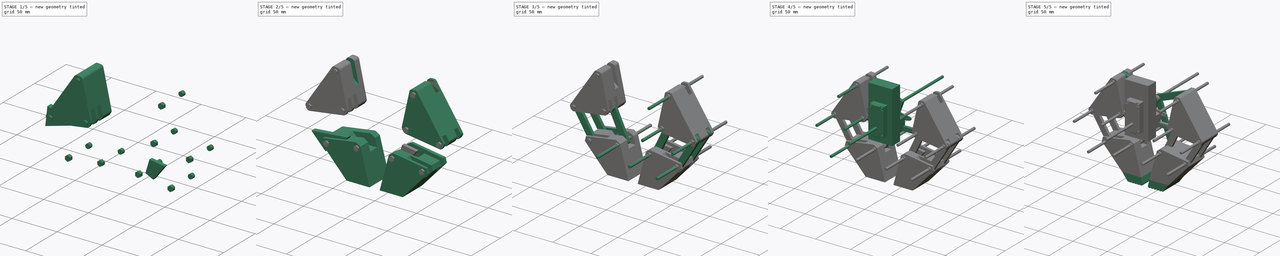
[diagram: build sequence overview — one tinted view per stage of 5, left to right]
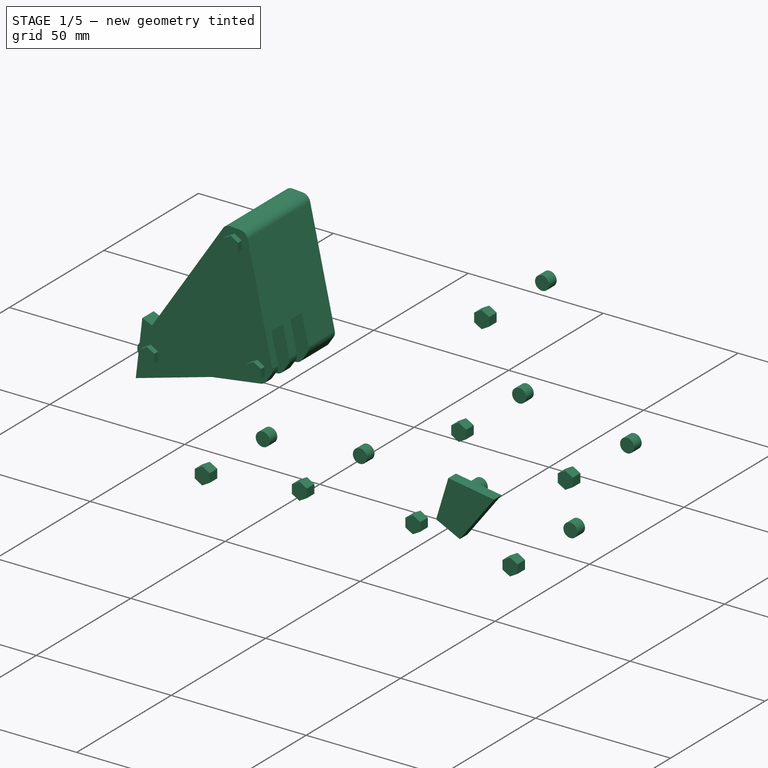
[diagram: stage 1 of 5 — iso view after this stage's code; geometry added in this stage tinted green]
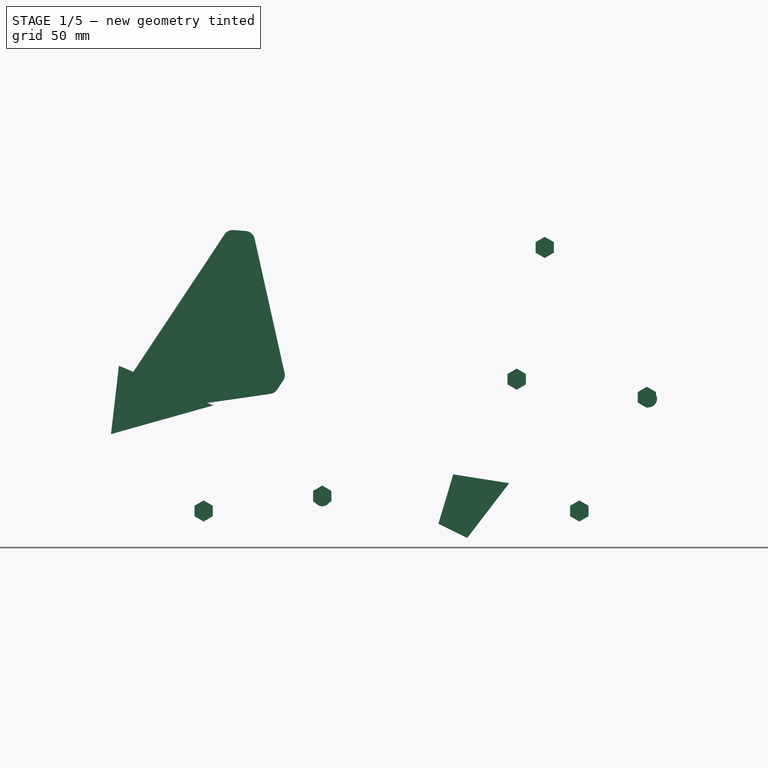
[diagram: stage 1 of 5 — front view after this stage's code; geometry added in this stage tinted green]
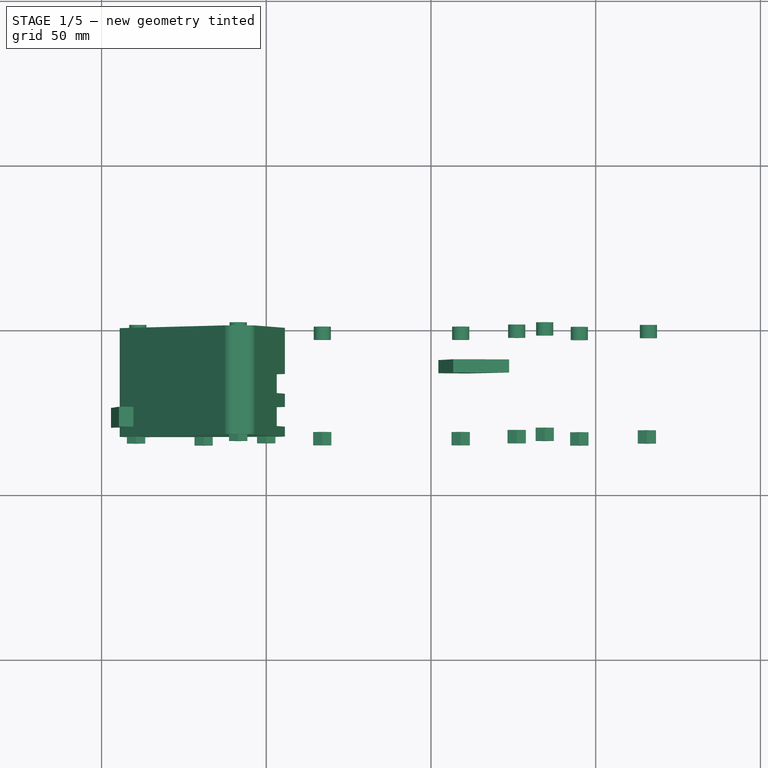
[diagram: stage 1 of 5 — top view after this stage's code; geometry added in this stage tinted green]
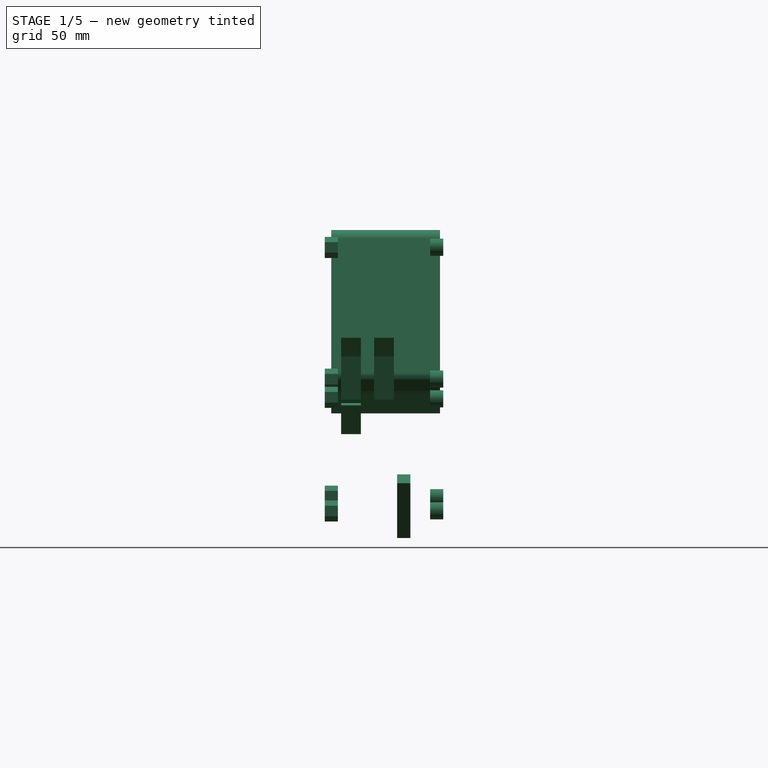
[diagram: stage 1 of 5 — right view after this stage's code; geometry added in this stage tinted green]
FCSTD DOCUMENT  (FreeCAD 0.15R4671 (Git))
Label: Doublelegs
License: All rights reserved
LicenseURL: http://es.wikipedia.org/wiki/Todos_los_derechos_reservados
objects: Sketcher::SketchObject×57, PartDesign::Pad×52, Part::Cylinder×24, Part::Fillet×22, Part::Mirroring×21, Part::Cut×19, Part::MultiFuse×12, Part::Feature×4, Part::Box×2, App::DocumentObjectGroup×1
note: 265 computed .brp shape members not serialized (recipe doc carries the construction recipe); baked Part::Feature solids carry a one-line shape summary decoded from their .brp

FEATURE [Sketcher::SketchObject] Sketch043
  Placement = pos=(-15,0,-10) rot=(0.913318,-0.287968,0.287968;1.66134rad)
  sketch-geometry (6):
    g0: LineSegment StartX=-26.1846 StartY=-19.8249 StartZ=0 EndX=-21.5367 EndY=-15.9796 EndZ=0
    g1: LineSegment StartX=-21.5367 StartY=-15.9796 StartZ=0 EndX=13.9632 EndY=-33.5618 EndZ=0
    g2: LineSegment StartX=13.9632 StartY=-33.5618 StartZ=0 EndX=16.4973 EndY=-39.3555 EndZ=0
    g3: LineSegment StartX=16.4973 StartY=-39.3555 StartZ=0 EndX=1.91251 EndY=-79.158 EndZ=0
    g4: LineSegment StartX=1.91251 StartY=-79.158 StartZ=0 EndX=-20.507 EndY=-63.5274 EndZ=0
    g5: LineSegment StartX=-20.507 StartY=-63.5274 StartZ=0 EndX=-26.1846 EndY=-19.8249 EndZ=0
  constraints (6):
    c: Coincident(g0,g1)
    c: Coincident(g1,g2)
    c: Coincident(g2,g3)
    c: Coincident(g3,g4)
    c: Coincident(g4,g5)
    c: Coincident(g5,g0)
FEATURE [Sketcher::SketchObject] Sketch044
  Placement = pos=(0,0,0) rot=(0.926703,-0.265728,0.265728;1.64685rad)
  sketch-geometry (6):
    g0: LineSegment StartX=-40.7654 StartY=19.725 StartZ=0 EndX=-40.7654 EndY=12.9153 EndZ=0
    g1: LineSegment StartX=-40.7654 StartY=12.9153 StartZ=0 EndX=-0.0823442 EndY=-5.03519 EndZ=0
    g2: LineSegment StartX=-0.0823442 StartY=-5.03519 StartZ=0 EndX=5.26188 EndY=-2.60545 EndZ=0
    g3: LineSegment StartX=5.26188 StartY=-2.60545 StartZ=0 EndX=20.3177 EndY=40.0856 EndZ=0
    g4: LineSegment StartX=20.3177 StartY=40.0856 StartZ=0 EndX=14.0989 EndY=44.6607 EndZ=0
    g5: LineSegment StartX=14.0989 StartY=44.6607 StartZ=0 EndX=-40.7654 EndY=19.725 EndZ=0
  constraints (7):
    c: Vertical(g0)
    c: Coincident(g0,g1)
    c: Coincident(g1,g2)
    c: Coincident(g2,g3)
    c: Coincident(g3,g4)
    c: Coincident(g4,g5)
    c: Coincident(g5,g0)
FEATURE [PartDesign::Pad] Pad039
  Length = 33
  Length2 = 100
  Placement = pos=(0,0,0) rot=(0.926703,-0.265728,0.265728;1.64685rad)
  Sketch = -> Sketch044
  Type = 0
FEATURE [Part::Fillet] Fillet021
  Base = -> Pad039
  Edges = 2 edges r=3: [Edge11,Edge14]
FEATURE [Part::Fillet] Fillet022
  Base = -> Fillet021
  Edges = 4 edges r=3: [Edge3,Edge14,Edge22,Edge24]
FEATURE [Sketcher::SketchObject] Sketch050
  Placement = pos=(0,-24,0) rot=(1,0,0;1.5708rad)
  sketch-geometry (3):
    g0: LineSegment StartX=-44.7162 StartY=4.03934 StartZ=0 EndX=-16.0865 EndY=-8.00782 EndZ=0
    g1: LineSegment StartX=-16.0865 StartY=-8.00782 StartZ=0 EndX=-47.1257 EndY=-16.7243 EndZ=0
    g2: LineSegment StartX=-47.1257 StartY=-16.7243 StartZ=0 EndX=-44.7162 EndY=4.03934 EndZ=0
  constraints (3):
    c: Coincident(g0,g1)
    c: Coincident(g1,g2)
    c: Coincident(g2,g0)
FEATURE [PartDesign::Pad] Pad046
  Length = 6
  Length2 = 100
  Placement = pos=(0,-24,0) rot=(1,0,0;1.5708rad)
  Sketch = -> Sketch050
  Type = 0
FEATURE [Sketcher::SketchObject] Sketch051
  Placement = pos=(0,-14,0) rot=(1,0,0;1.5708rad)
  sketch-geometry (5):
    g0: LineSegment StartX=5.3678 StartY=13.6808 StartZ=0 EndX=-7.45792 EndY=6.84038 EndZ=0
    g1: LineSegment StartX=-7.45792 StartY=6.84038 StartZ=0 EndX=-11.7332 EndY=-9.12051 EndZ=0
    g2: LineSegment StartX=-11.7332 StartY=-9.12051 StartZ=0 EndX=13.2532 EndY=-11.5906 EndZ=0
    g3: LineSegment StartX=13.2532 StartY=-11.5906 StartZ=0 EndX=11.4481 EndY=11.6857 EndZ=0
    g4: LineSegment StartX=11.4481 StartY=11.6857 StartZ=0 EndX=5.3678 EndY=13.6808 EndZ=0
  constraints (5):
    c: Coincident(g0,g1)
    c: Coincident(g1,g2)
    c: Coincident(g2,g3)
    c: Coincident(g3,g4)
    c: Coincident(g4,g0)
FEATURE [PartDesign::Pad] Pad047
  Length = 6
  Length2 = 100
  Placement = pos=(0,-14,0) rot=(1,0,0;1.5708rad)
  Sketch = -> Sketch051
  Type = 0
FEATURE [Sketcher::SketchObject] Sketch052
  Placement = pos=(0,-24,0) rot=(1,0,0;1.5708rad)
  sketch-geometry (5):
    g0: LineSegment StartX=5.3678 StartY=13.6808 StartZ=0 EndX=-7.45792 EndY=6.84038 EndZ=0
    g1: LineSegment StartX=-7.45792 StartY=6.84038 StartZ=0 EndX=-11.7332 EndY=-9.12051 EndZ=0
    g2: LineSegment StartX=-11.7332 StartY=-9.12051 StartZ=0 EndX=13.2532 EndY=-11.5906 EndZ=0
    g3: LineSegment StartX=13.2532 StartY=-11.5906 StartZ=0 EndX=11.4481 EndY=11.6857 EndZ=0
    g4: LineSegment StartX=11.4481 StartY=11.6857 StartZ=0 EndX=5.3678 EndY=13.6808 EndZ=0
  constraints (5):
    c: Coincident(g0,g1)
    c: Coincident(g1,g2)
    c: Coincident(g2,g3)
    c: Coincident(g3,g4)
    c: Coincident(g4,g0)
FEATURE [PartDesign::Pad] Pad048
  Length = 6
  Length2 = 100
  Placement = pos=(0,-24,0) rot=(1,0,0;1.5708rad)
  Sketch = -> Sketch052
  Type = 0
FEATURE [Part::Cut] Cut011
  Base = -> Fillet022
  Tool = -> Pad048
FEATURE [Part::Cut] Cut012
  Base = -> Cut011
  Tool = -> Pad047
FEATURE [Part::Cylinder] Cylinder016  label="Cilindro016"
  Angle = 360
  Height = 4
  Placement = pos=(-39,1,-6) rot=(1,0,0;1.5708rad)
  Radius = 2.6
FEATURE [Part::Cylinder] Cylinder017  label="Cilindro017"
  Angle = 360
  Height = 4
  Placement = pos=(-8.5,1,40) rot=(1,0,0;1.5708rad)
  Radius = 2.6
FEATURE [Part::Cylinder] Cylinder018  label="Cilindro018"
  Angle = 360
  Height = 4
  Placement = pos=(-19,1,-40) rot=(1,0,0;1.5708rad)
  Radius = 2.6
FEATURE [Part::Cylinder] Cylinder019  label="Cilindro019"
  Angle = 360
  Height = 4
  Placement = pos=(17,1,-36) rot=(1,0,0;1.5708rad)
  Radius = 2.6
FEATURE [Part::Cylinder] Cylinder022  label="Cilindro022"
  Angle = 360
  Height = 4
  Placement = pos=(84.5,1,40) rot=(1,0,0;1.5708rad)
  Radius = 2.6
FEATURE [Part::Cylinder] Cylinder023  label="Cilindro023"
  Angle = 360
  Height = 4
  Placement = pos=(116,1,-6) rot=(1,0,0;1.5708rad)
  Radius = 2.6
FEATURE [Part::Cylinder] Cylinder024  label="Cilindro024"
  Angle = 360
  Height = 4
  Placement = pos=(59,1,-36) rot=(1,0,0;1.5708rad)
  Radius = 2.6
FEATURE [Part::Cylinder] Cylinder025  label="Cilindro025"
  Angle = 360
  Height = 4
  Placement = pos=(95,1,-40) rot=(1,0,0;1.5708rad)
  Radius = 2.6
FEATURE [Part::Cylinder] Cylinder026  label="Cilindro026"
  Angle = 360
  Height = 4
  Placement = pos=(76,1,0) rot=(1,0,0;1.5708rad)
  Radius = 2.6
FEATURE [Sketcher::SketchObject] Sketch056
  Placement = pos=(0,-31,0) rot=(1,0,0;1.5708rad)
  sketch-geometry (7):
    g0: LineSegment StartX=-0.014307 StartY=-3.24781 StartZ=0 EndX=2.7612 EndY=-1.64537 EndZ=0
    g1: LineSegment StartX=2.7612 StartY=-1.64537 StartZ=0 EndX=2.7612 EndY=1.55952 EndZ=0
    g2: LineSegment StartX=2.7612 StartY=1.55952 StartZ=0 EndX=-0.014307 EndY=3.16196 EndZ=0
    g3: LineSegment StartX=-0.014307 StartY=3.16196 StartZ=0 EndX=-2.78982 EndY=1.55952 EndZ=0
    g4: LineSegment StartX=-2.78982 StartY=1.55952 StartZ=0 EndX=-2.78982 EndY=-1.64537 EndZ=0
    g5: LineSegment StartX=-2.78982 StartY=-1.64537 StartZ=0 EndX=-0.014307 EndY=-3.24781 EndZ=0
    g6: Circle [constr] CenterX=-0.014307 CenterY=-0.042923 CenterZ=0 NormalX=0 NormalY=0 NormalZ=1 Radius=3.20488
  constraints (15):
    c: Coincident(g0,g1)
    c: Coincident(g1,g2)
    c: Coincident(g2,g3)
    c: Coincident(g3,g4)
    c: Coincident(g4,g5)
    c: Coincident(g5,g0)
    c: Equal(g0, g1-g5) x5
    c: PointOnObject(g0,g6)
    c: PointOnObject(g1,g6)
    c: PointOnObject(g2,g6)
    c: PointOnObject(g3,g6)
    c: PointOnObject(g4,g6)
    c: PointOnObject(g5,g6)
    c: PointOnObject(g3,g-2)
    c: Vertical(g4)
FEATURE [PartDesign::Pad] Pad052
  Length = 4
  Length2 = 100
  Placement = pos=(0,-31,0) rot=(1,0,0;1.5708rad)
  Sketch = -> Sketch056
  Type = 0
FEATURE [Sketcher::SketchObject] Sketch057
  Placement = pos=(-39.5,-31,-5.5) rot=(1,0,0;1.5708rad)
  sketch-geometry (7):
    g0: LineSegment StartX=-0.014307 StartY=-3.24781 StartZ=0 EndX=2.7612 EndY=-1.64537 EndZ=0
    g1: LineSegment StartX=2.7612 StartY=-1.64537 StartZ=0 EndX=2.7612 EndY=1.55952 EndZ=0
    g2: LineSegment StartX=2.7612 StartY=1.55952 StartZ=0 EndX=-0.014307 EndY=3.16196 EndZ=0
    g3: LineSegment StartX=-0.014307 StartY=3.16196 StartZ=0 EndX=-2.78982 EndY=1.55952 EndZ=0
    g4: LineSegment StartX=-2.78982 StartY=1.55952 StartZ=0 EndX=-2.78982 EndY=-1.64537 EndZ=0
    g5: LineSegment StartX=-2.78982 StartY=-1.64537 StartZ=0 EndX=-0.014307 EndY=-3.24781 EndZ=0
    g6: Circle [constr] CenterX=-0.014307 CenterY=-0.042923 CenterZ=0 NormalX=0 NormalY=0 NormalZ=1 Radius=3.20488
  constraints (15):
    c: Coincident(g0,g1)
    c: Coincident(g1,g2)
    c: Coincident(g2,g3)
    c: Coincident(g3,g4)
    c: Coincident(g4,g5)
    c: Coincident(g5,g0)
    c: Equal(g0, g1-g5) x5
    c: PointOnObject(g0,g6)
    c: PointOnObject(g1,g6)
    c: PointOnObject(g2,g6)
    c: PointOnObject(g3,g6)
    c: PointOnObject(g4,g6)
    c: PointOnObject(g5,g6)
    c: PointOnObject(g3,g-2)
    c: Vertical(g4)
FEATURE [PartDesign::Pad] Pad053
  Length = 4
  Length2 = 100
  Placement = pos=(-39.5,-31,-5.5) rot=(1,0,0;1.5708rad)
  Sketch = -> Sketch057
  Type = 0
FEATURE [Sketcher::SketchObject] Sketch058
  Placement = pos=(-19,-31,-40) rot=(1,0,0;1.5708rad)
  sketch-geometry (7):
    g0: LineSegment StartX=-0.014307 StartY=-3.24781 StartZ=0 EndX=2.7612 EndY=-1.64537 EndZ=0
    g1: LineSegment StartX=2.7612 StartY=-1.64537 StartZ=0 EndX=2.7612 EndY=1.55952 EndZ=0
    g2: LineSegment StartX=2.7612 StartY=1.55952 StartZ=0 EndX=-0.014307 EndY=3.16196 EndZ=0
    g3: LineSegment StartX=-0.014307 StartY=3.16196 StartZ=0 EndX=-2.78982 EndY=1.55952 EndZ=0
    g4: LineSegment StartX=-2.78982 StartY=1.55952 StartZ=0 EndX=-2.78982 EndY=-1.64537 EndZ=0
    g5: LineSegment StartX=-2.78982 StartY=-1.64537 StartZ=0 EndX=-0.014307 EndY=-3.24781 EndZ=0
    g6: Circle [constr] CenterX=-0.014307 CenterY=-0.042923 CenterZ=0 NormalX=0 NormalY=0 NormalZ=1 Radius=3.20488
  constraints (15):
    c: Coincident(g0,g1)
    c: Coincident(g1,g2)
    c: Coincident(g2,g3)
    c: Coincident(g3,g4)
    c: Coincident(g4,g5)
    c: Coincident(g5,g0)
    c: Equal(g0, g1-g5) x5
    c: PointOnObject(g0,g6)
    c: PointOnObject(g1,g6)
    c: PointOnObject(g2,g6)
    c: PointOnObject(g3,g6)
    c: PointOnObject(g4,g6)
    c: PointOnObject(g5,g6)
    c: PointOnObject(g3,g-2)
    c: Vertical(g4)
FEATURE [PartDesign::Pad] Pad054
  Length = 4
  Length2 = 100
  Placement = pos=(-19,-31,-40) rot=(1,0,0;1.5708rad)
  Sketch = -> Sketch058
  Type = 0
FEATURE [Sketcher::SketchObject] Sketch059
  Placement = pos=(17,-31,-35.5) rot=(1,0,0;1.5708rad)
  sketch-geometry (7):
    g0: LineSegment StartX=-0.014307 StartY=-3.24781 StartZ=0 EndX=2.7612 EndY=-1.64537 EndZ=0
    g1: LineSegment StartX=2.7612 StartY=-1.64537 StartZ=0 EndX=2.7612 EndY=1.55952 EndZ=0
    g2: LineSegment StartX=2.7612 StartY=1.55952 StartZ=0 EndX=-0.014307 EndY=3.16196 EndZ=0
    g3: LineSegment StartX=-0.014307 StartY=3.16196 StartZ=0 EndX=-2.78982 EndY=1.55952 EndZ=0
    g4: LineSegment StartX=-2.78982 StartY=1.55952 StartZ=0 EndX=-2.78982 EndY=-1.64537 EndZ=0
    g5: LineSegment StartX=-2.78982 StartY=-1.64537 StartZ=0 EndX=-0.014307 EndY=-3.24781 EndZ=0
    g6: Circle [constr] CenterX=-0.014307 CenterY=-0.042923 CenterZ=0 NormalX=0 NormalY=0 NormalZ=1 Radius=3.20488
  constraints (15):
    c: Coincident(g0,g1)
    c: Coincident(g1,g2)
    c: Coincident(g2,g3)
    c: Coincident(g3,g4)
    c: Coincident(g4,g5)
    c: Coincident(g5,g0)
    c: Equal(g0, g1-g5) x5
    c: PointOnObject(g0,g6)
    c: PointOnObject(g1,g6)
    c: PointOnObject(g2,g6)
    c: PointOnObject(g3,g6)
    c: PointOnObject(g4,g6)
    c: PointOnObject(g5,g6)
    c: PointOnObject(g3,g-2)
    c: Vertical(g4)
FEATURE [PartDesign::Pad] Pad055
  Length = 4
  Length2 = 100
  Placement = pos=(17,-31,-35.5) rot=(1,0,0;1.5708rad)
  Sketch = -> Sketch059
  Type = 0
FEATURE [Sketcher::SketchObject] Sketch060
  Placement = pos=(-8.5,-31,40) rot=(1,0,0;1.5708rad)
  sketch-geometry (7):
    g0: LineSegment StartX=-0.014307 StartY=-3.24781 StartZ=0 EndX=2.7612 EndY=-1.64537 EndZ=0
    g1: LineSegment StartX=2.7612 StartY=-1.64537 StartZ=0 EndX=2.7612 EndY=1.55952 EndZ=0
    g2: LineSegment StartX=2.7612 StartY=1.55952 StartZ=0 EndX=-0.014307 EndY=3.16196 EndZ=0
    g3: LineSegment StartX=-0.014307 StartY=3.16196 StartZ=0 EndX=-2.78982 EndY=1.55952 EndZ=0
    g4: LineSegment StartX=-2.78982 StartY=1.55952 StartZ=0 EndX=-2.78982 EndY=-1.64537 EndZ=0
    g5: LineSegment StartX=-2.78982 StartY=-1.64537 StartZ=0 EndX=-0.014307 EndY=-3.24781 EndZ=0
    g6: Circle [constr] CenterX=-0.014307 CenterY=-0.042923 CenterZ=0 NormalX=0 NormalY=0 NormalZ=1 Radius=3.20488
  constraints (15):
    c: Coincident(g0,g1)
    c: Coincident(g1,g2)
    c: Coincident(g2,g3)
    c: Coincident(g3,g4)
    c: Coincident(g4,g5)
    c: Coincident(g5,g0)
    c: Equal(g0, g1-g5) x5
    c: PointOnObject(g0,g6)
    c: PointOnObject(g1,g6)
    c: PointOnObject(g2,g6)
    c: PointOnObject(g3,g6)
    c: PointOnObject(g4,g6)
    c: PointOnObject(g5,g6)
    c: PointOnObject(g3,g-2)
    c: Vertical(g4)
FEATURE [PartDesign::Pad] Pad056
  Length = 4
  Length2 = 100
  Placement = pos=(-8.5,-31,40) rot=(1,0,0;1.5708rad)
  Sketch = -> Sketch060
  Type = 0
FEATURE [Sketcher::SketchObject] Sketch061
  Placement = pos=(38,-13,8) rot=(1,0,0;1.5708rad)
  sketch-geometry (7):
    g0: LineSegment StartX=-0.014307 StartY=-3.24781 StartZ=0 EndX=2.7612 EndY=-1.64537 EndZ=0
    g1: LineSegment StartX=2.7612 StartY=-1.64537 StartZ=0 EndX=2.7612 EndY=1.55952 EndZ=0
    g2: LineSegment StartX=2.7612 StartY=1.55952 StartZ=0 EndX=-0.014307 EndY=3.16196 EndZ=0
    g3: LineSegment StartX=-0.014307 StartY=3.16196 StartZ=0 EndX=-2.78982 EndY=1.55952 EndZ=0
    g4: LineSegment StartX=-2.78982 StartY=1.55952 StartZ=0 EndX=-2.78982 EndY=-1.64537 EndZ=0
    g5: LineSegment StartX=-2.78982 StartY=-1.64537 StartZ=0 EndX=-0.014307 EndY=-3.24781 EndZ=0
    g6: Circle [constr] CenterX=-0.014307 CenterY=-0.042923 CenterZ=0 NormalX=0 NormalY=0 NormalZ=1 Radius=3.20488
  constraints (15):
    c: Coincident(g0,g1)
    c: Coincident(g1,g2)
    c: Coincident(g2,g3)
    c: Coincident(g3,g4)
    c: Coincident(g4,g5)
    c: Coincident(g5,g0)
    c: Equal(g0, g1-g5) x5
    c: PointOnObject(g0,g6)
    c: PointOnObject(g1,g6)
    c: PointOnObject(g2,g6)
    c: PointOnObject(g3,g6)
    c: PointOnObject(g4,g6)
    c: PointOnObject(g5,g6)
    c: PointOnObject(g3,g-2)
    c: Vertical(g4)
FEATURE [Sketcher::SketchObject] Sketch062
  Placement = pos=(0,-31,0) rot=(1,0,0;1.5708rad)
  sketch-geometry (7):
    g0: LineSegment StartX=-0.014307 StartY=-3.24781 StartZ=0 EndX=2.7612 EndY=-1.64537 EndZ=0
    g1: LineSegment StartX=2.7612 StartY=-1.64537 StartZ=0 EndX=2.7612 EndY=1.55952 EndZ=0
    g2: LineSegment StartX=2.7612 StartY=1.55952 StartZ=0 EndX=-0.014307 EndY=3.16196 EndZ=0
    g3: LineSegment StartX=-0.014307 StartY=3.16196 StartZ=0 EndX=-2.78982 EndY=1.55952 EndZ=0
    g4: LineSegment StartX=-2.78982 StartY=1.55952 StartZ=0 EndX=-2.78982 EndY=-1.64537 EndZ=0
    g5: LineSegment StartX=-2.78982 StartY=-1.64537 StartZ=0 EndX=-0.014307 EndY=-3.24781 EndZ=0
    g6: Circle [constr] CenterX=-0.014307 CenterY=-0.042923 CenterZ=0 NormalX=0 NormalY=0 NormalZ=1 Radius=3.20488
  constraints (15):
    c: Coincident(g0,g1)
    c: Coincident(g1,g2)
    c: Coincident(g2,g3)
    c: Coincident(g3,g4)
    c: Coincident(g4,g5)
    c: Coincident(g5,g0)
    c: Equal(g0, g1-g5) x5
    c: PointOnObject(g0,g6)
    c: PointOnObject(g1,g6)
    c: PointOnObject(g2,g6)
    c: PointOnObject(g3,g6)
    c: PointOnObject(g4,g6)
    c: PointOnObject(g5,g6)
    c: PointOnObject(g3,g-2)
    c: Vertical(g4)
FEATURE [PartDesign::Pad] Pad058
  Length = 4
  Length2 = 100
  Placement = pos=(0,-31,0) rot=(1,0,0;1.5708rad)
  Sketch = -> Sketch062
  Type = 0
FEATURE [Sketcher::SketchObject] Sketch063
  Placement = pos=(-39.5,-31,-5.5) rot=(1,0,0;1.5708rad)
  sketch-geometry (7):
    g0: LineSegment StartX=-0.014307 StartY=-3.24781 StartZ=0 EndX=2.7612 EndY=-1.64537 EndZ=0
    g1: LineSegment StartX=2.7612 StartY=-1.64537 StartZ=0 EndX=2.7612 EndY=1.55952 EndZ=0
    g2: LineSegment StartX=2.7612 StartY=1.55952 StartZ=0 EndX=-0.014307 EndY=3.16196 EndZ=0
    g3: LineSegment StartX=-0.014307 StartY=3.16196 StartZ=0 EndX=-2.78982 EndY=1.55952 EndZ=0
    g4: LineSegment StartX=-2.78982 StartY=1.55952 StartZ=0 EndX=-2.78982 EndY=-1.64537 EndZ=0
    g5: LineSegment StartX=-2.78982 StartY=-1.64537 StartZ=0 EndX=-0.014307 EndY=-3.24781 EndZ=0
    g6: Circle [constr] CenterX=-0.014307 CenterY=-0.042923 CenterZ=0 NormalX=0 NormalY=0 NormalZ=1 Radius=3.20488
  constraints (15):
    c: Coincident(g0,g1)
    c: Coincident(g1,g2)
    c: Coincident(g2,g3)
    c: Coincident(g3,g4)
    c: Coincident(g4,g5)
    c: Coincident(g5,g0)
    c: Equal(g0, g1-g5) x5
    c: PointOnObject(g0,g6)
    c: PointOnObject(g1,g6)
    c: PointOnObject(g2,g6)
    c: PointOnObject(g3,g6)
    c: PointOnObject(g4,g6)
    c: PointOnObject(g5,g6)
    c: PointOnObject(g3,g-2)
    c: Vertical(g4)
FEATURE [PartDesign::Pad] Pad059
  Length = 4
  Length2 = 100
  Placement = pos=(-39.5,-31,-5.5) rot=(1,0,0;1.5708rad)
  Sketch = -> Sketch063
  Type = 0
FEATURE [Sketcher::SketchObject] Sketch064
  Placement = pos=(-19,-31,-40) rot=(1,0,0;1.5708rad)
  sketch-geometry (7):
    g0: LineSegment StartX=-0.014307 StartY=-3.24781 StartZ=0 EndX=2.7612 EndY=-1.64537 EndZ=0
    g1: LineSegment StartX=2.7612 StartY=-1.64537 StartZ=0 EndX=2.7612 EndY=1.55952 EndZ=0
    g2: LineSegment StartX=2.7612 StartY=1.55952 StartZ=0 EndX=-0.014307 EndY=3.16196 EndZ=0
    g3: LineSegment StartX=-0.014307 StartY=3.16196 StartZ=0 EndX=-2.78982 EndY=1.55952 EndZ=0
    g4: LineSegment StartX=-2.78982 StartY=1.55952 StartZ=0 EndX=-2.78982 EndY=-1.64537 EndZ=0
    g5: LineSegment StartX=-2.78982 StartY=-1.64537 StartZ=0 EndX=-0.014307 EndY=-3.24781 EndZ=0
    g6: Circle [constr] CenterX=-0.014307 CenterY=-0.042923 CenterZ=0 NormalX=0 NormalY=0 NormalZ=1 Radius=3.20488
  constraints (15):
    c: Coincident(g0,g1)
    c: Coincident(g1,g2)
    c: Coincident(g2,g3)
    c: Coincident(g3,g4)
    c: Coincident(g4,g5)
    c: Coincident(g5,g0)
    c: Equal(g0, g1-g5) x5
    c: PointOnObject(g0,g6)
    c: PointOnObject(g1,g6)
    c: PointOnObject(g2,g6)
    c: PointOnObject(g3,g6)
    c: PointOnObject(g4,g6)
    c: PointOnObject(g5,g6)
    c: PointOnObject(g3,g-2)
    c: Vertical(g4)
FEATURE [PartDesign::Pad] Pad060
  Length = 4
  Length2 = 100
  Placement = pos=(-19,-31,-40) rot=(1,0,0;1.5708rad)
  Sketch = -> Sketch064
  Type = 0
FEATURE [Sketcher::SketchObject] Sketch065
  Placement = pos=(17,-31,-35.5) rot=(1,0,0;1.5708rad)
  sketch-geometry (7):
    g0: LineSegment StartX=-0.014307 StartY=-3.24781 StartZ=0 EndX=2.7612 EndY=-1.64537 EndZ=0
    g1: LineSegment StartX=2.7612 StartY=-1.64537 StartZ=0 EndX=2.7612 EndY=1.55952 EndZ=0
    g2: LineSegment StartX=2.7612 StartY=1.55952 StartZ=0 EndX=-0.014307 EndY=3.16196 EndZ=0
    g3: LineSegment StartX=-0.014307 StartY=3.16196 StartZ=0 EndX=-2.78982 EndY=1.55952 EndZ=0
    g4: LineSegment StartX=-2.78982 StartY=1.55952 StartZ=0 EndX=-2.78982 EndY=-1.64537 EndZ=0
    g5: LineSegment StartX=-2.78982 StartY=-1.64537 StartZ=0 EndX=-0.014307 EndY=-3.24781 EndZ=0
    g6: Circle [constr] CenterX=-0.014307 CenterY=-0.042923 CenterZ=0 NormalX=0 NormalY=0 NormalZ=1 Radius=3.20488
  constraints (15):
    c: Coincident(g0,g1)
    c: Coincident(g1,g2)
    c: Coincident(g2,g3)
    c: Coincident(g3,g4)
    c: Coincident(g4,g5)
    c: Coincident(g5,g0)
    c: Equal(g0, g1-g5) x5
    c: PointOnObject(g0,g6)
    c: PointOnObject(g1,g6)
    c: PointOnObject(g2,g6)
    c: PointOnObject(g3,g6)
    c: PointOnObject(g4,g6)
    c: PointOnObject(g5,g6)
    c: PointOnObject(g3,g-2)
    c: Vertical(g4)
FEATURE [PartDesign::Pad] Pad061
  Length = 4
  Length2 = 100
  Placement = pos=(17,-31,-35.5) rot=(1,0,0;1.5708rad)
  Sketch = -> Sketch065
  Type = 0
FEATURE [Sketcher::SketchObject] Sketch066
  Placement = pos=(-8.5,-31,40) rot=(1,0,0;1.5708rad)
  sketch-geometry (7):
    g0: LineSegment StartX=-0.014307 StartY=-3.24781 StartZ=0 EndX=2.7612 EndY=-1.64537 EndZ=0
    g1: LineSegment StartX=2.7612 StartY=-1.64537 StartZ=0 EndX=2.7612 EndY=1.55952 EndZ=0
    g2: LineSegment StartX=2.7612 StartY=1.55952 StartZ=0 EndX=-0.014307 EndY=3.16196 EndZ=0
    g3: LineSegment StartX=-0.014307 StartY=3.16196 StartZ=0 EndX=-2.78982 EndY=1.55952 EndZ=0
    g4: LineSegment StartX=-2.78982 StartY=1.55952 StartZ=0 EndX=-2.78982 EndY=-1.64537 EndZ=0
    g5: LineSegment StartX=-2.78982 StartY=-1.64537 StartZ=0 EndX=-0.014307 EndY=-3.24781 EndZ=0
    g6: Circle [constr] CenterX=-0.014307 CenterY=-0.042923 CenterZ=0 NormalX=0 NormalY=0 NormalZ=1 Radius=3.20488
  constraints (15):
    c: Coincident(g0,g1)
    c: Coincident(g1,g2)
    c: Coincident(g2,g3)
    c: Coincident(g3,g4)
    c: Coincident(g4,g5)
    c: Coincident(g5,g0)
    c: Equal(g0, g1-g5) x5
    c: PointOnObject(g0,g6)
    c: PointOnObject(g1,g6)
    c: PointOnObject(g2,g6)
    c: PointOnObject(g3,g6)
    c: PointOnObject(g4,g6)
    c: PointOnObject(g5,g6)
    c: PointOnObject(g3,g-2)
    c: Vertical(g4)
FEATURE [PartDesign::Pad] Pad062
  Length = 4
  Length2 = 100
  Placement = pos=(-8.5,-31,40) rot=(1,0,0;1.5708rad)
  Sketch = -> Sketch066
  Type = 0
FEATURE [Part::MultiFuse] Fusion014
  Shapes = -> [Pad058,Pad060,Pad059,Pad061,Pad062]
FEATURE [Part::Mirroring] Part__Mirroring020  label="Fusion014 (Mirror #21)"
  Base = (0,0,0)
  Normal = (1,0,0)
  Placement = pos=(76,0,0) rot=(0,0,1;0rad)
  Source = -> Fusion014
FEATURE [Sketcher::SketchObject] Sketch067
  Placement = pos=(0,-9,0) rot=(1,0,0;1.5708rad)
  sketch-geometry (4):
    g0: LineSegment StartX=52.2521 StartY=-43.9032 StartZ=0 EndX=56.753 EndY=-28.9291 EndZ=0
    g1: LineSegment StartX=56.753 StartY=-28.9291 StartZ=0 EndX=73.7178 EndY=-31.6123 EndZ=0
    g2: LineSegment StartX=73.7178 StartY=-31.6123 StartZ=0 EndX=60.9942 EndY=-48.2309 EndZ=0
    g3: LineSegment StartX=60.9942 StartY=-48.2309 StartZ=0 EndX=52.2521 EndY=-43.9032 EndZ=0
  constraints (4):
    c: Coincident(g0,g1)
    c: Coincident(g1,g2)
    c: Coincident(g2,g3)
    c: Coincident(g3,g0)
FEATURE [PartDesign::Pad] Pad063
  Length = 4
  Length2 = 100
  Placement = pos=(0,-9,0) rot=(1,0,0;1.5708rad)
  Sketch = -> Sketch067
  Type = 0
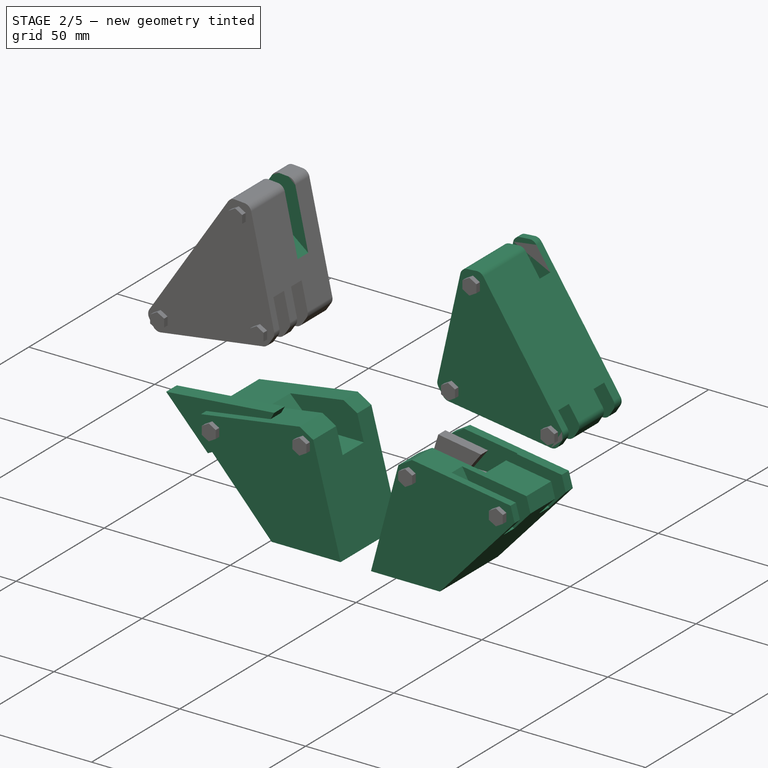
[diagram: stage 2 of 5 — iso view after this stage's code; geometry added in this stage tinted green]
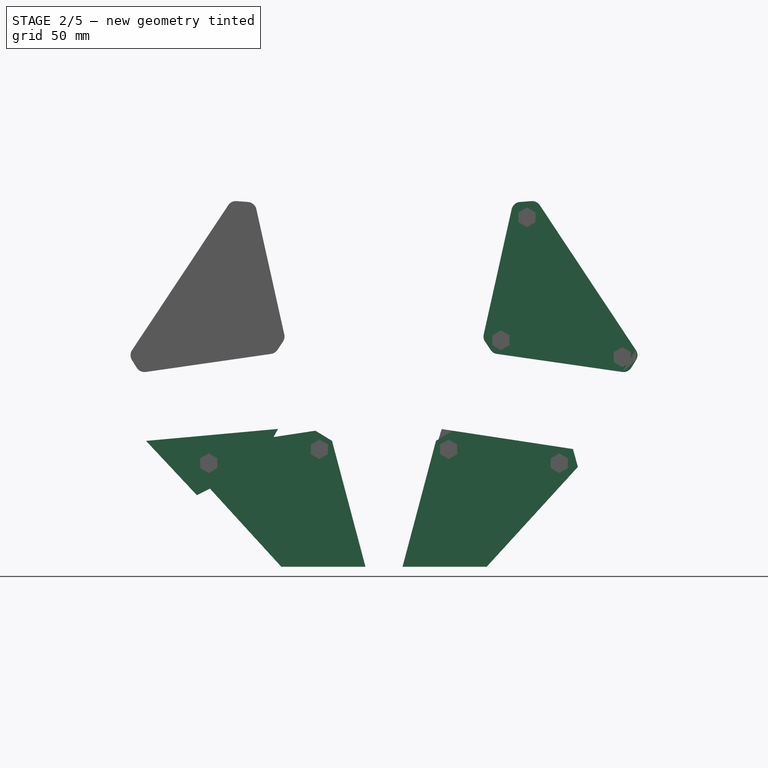
[diagram: stage 2 of 5 — front view after this stage's code; geometry added in this stage tinted green]
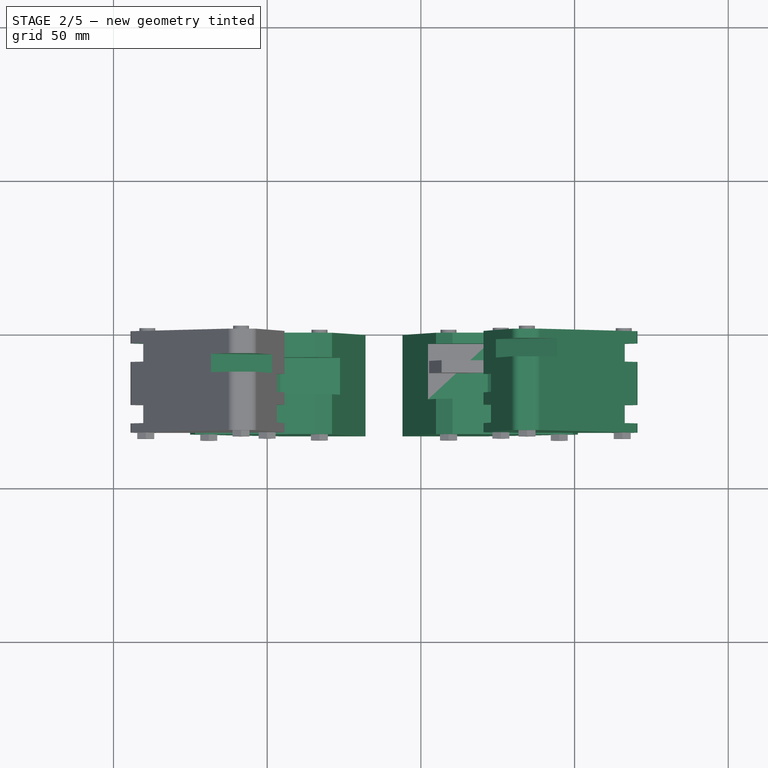
[diagram: stage 2 of 5 — top view after this stage's code; geometry added in this stage tinted green]
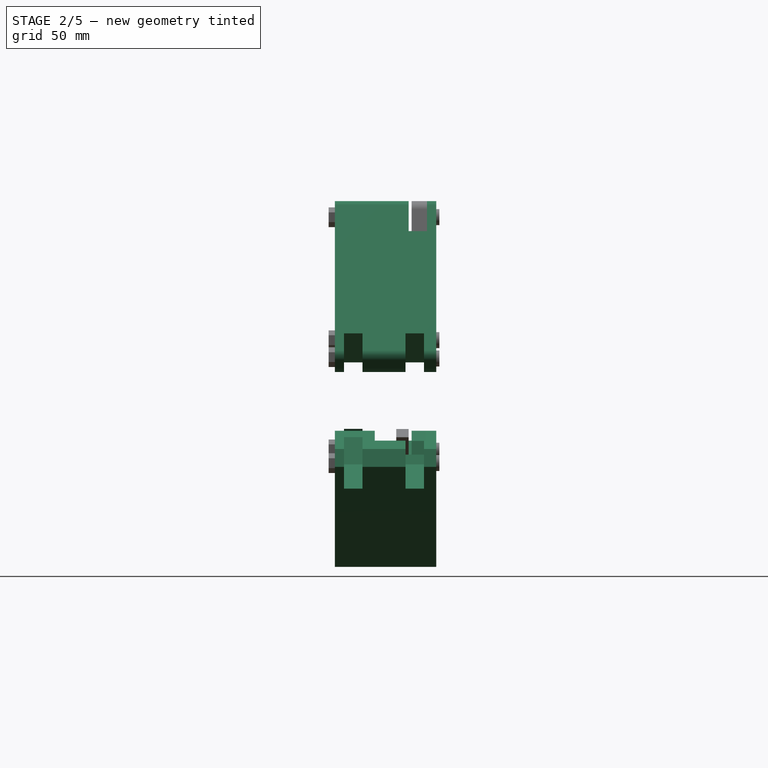
[diagram: stage 2 of 5 — right view after this stage's code; geometry added in this stage tinted green]
FEATURE [PartDesign::Pad] Pad001
  Length = 33
  Length2 = 100
  Placement = pos=(-15,0,-10) rot=(0.913318,-0.287968,0.287968;1.66134rad)
  Sketch = -> Sketch001
  Type = 0
FEATURE [Sketcher::SketchObject] Sketch016
  Placement = pos=(0,0,0) rot=(1,0,0;1.5708rad)
  sketch-geometry (24):
    g0: LineSegment StartX=31.9221 StartY=-73.7642 StartZ=0 EndX=34.7157 EndY=-84.3474 EndZ=0
    g1: LineSegment StartX=34.7157 StartY=-84.3474 StartZ=0 EndX=31.0042 EndY=-84.3474 EndZ=0
    g2: LineSegment StartX=31.0042 StartY=-84.3474 StartZ=0 EndX=29.9949 EndY=-83.0102 EndZ=0
    g3: LineSegment StartX=29.9949 StartY=-83.0102 StartZ=0 EndX=29.0048 EndY=-82.9974 EndZ=0
    g4: LineSegment StartX=29.0048 StartY=-82.9974 StartZ=0 EndX=29.9744 EndY=-84.3565 EndZ=0
    g5: LineSegment StartX=29.9744 StartY=-84.3565 StartZ=0 EndX=27.0013 EndY=-84.3565 EndZ=0
    g6: LineSegment StartX=27.0013 StartY=-84.3565 StartZ=0 EndX=25.9942 EndY=-83.0138 EndZ=0
    g7: LineSegment StartX=25.9942 StartY=-83.0138 StartZ=0 EndX=24.9776 EndY=-83.0138 EndZ=0
    g8: LineSegment StartX=24.9776 StartY=-83.0138 StartZ=0 EndX=26.0038 EndY=-84.3756 EndZ=0
    g9: LineSegment StartX=26.0038 StartY=-84.3756 StartZ=0 EndX=23.0075 EndY=-84.3756 EndZ=0
    g10: LineSegment StartX=23.0075 StartY=-84.3756 StartZ=0 EndX=22.0197 EndY=-83.0236 EndZ=0
    g11: LineSegment StartX=22.0197 StartY=-83.0236 StartZ=0 EndX=20.9743 EndY=-83.0236 EndZ=0
    g12: LineSegment StartX=20.9743 StartY=-83.0236 StartZ=0 EndX=22.0005 EndY=-84.3663 EndZ=0
    g13: LineSegment StartX=22.0005 StartY=-84.3663 StartZ=0 EndX=19.0178 EndY=-84.3663 EndZ=0
    g14: LineSegment StartX=19.0178 StartY=-84.3663 StartZ=0 EndX=17.9916 EndY=-83.0045 EndZ=0
    g15: LineSegment StartX=17.9916 StartY=-83.0045 StartZ=0 EndX=16.9846 EndY=-83.0045 EndZ=0
    g16: LineSegment StartX=16.9846 StartY=-83.0045 StartZ=0 EndX=18.0012 EndY=-84.3663 EndZ=0
    g17: LineSegment StartX=18.0012 StartY=-84.3663 StartZ=0 EndX=15.0322 EndY=-84.3663 EndZ=0
    g18: LineSegment StartX=15.0322 StartY=-84.3663 StartZ=0 EndX=14.0131 EndY=-83.0204 EndZ=0
    g19: LineSegment StartX=14.0131 StartY=-83.0204 StartZ=0 EndX=12.9823 EndY=-83.0204 EndZ=0
    g20: LineSegment StartX=12.9823 StartY=-83.0204 StartZ=0 EndX=14.0014 EndY=-84.3792 EndZ=0
    g21: LineSegment StartX=14.0014 StartY=-84.3792 StartZ=0 EndX=12.6817 EndY=-84.3792 EndZ=0
    g22: LineSegment StartX=12.6817 StartY=-84.3792 StartZ=0 EndX=4.6509 EndY=-73.7642 EndZ=0
    g23: LineSegment StartX=4.6509 StartY=-73.7642 StartZ=0 EndX=31.9221 EndY=-73.7642 EndZ=0
  constraints (35):
    c: Coincident(g0,g1)
    c: Horizontal(g1)
    c: Coincident(g1,g2)
    c: Coincident(g2,g3)
    c: Coincident(g3,g4)
    c: Coincident(g4,g5)
    c: Horizontal(g5)
    c: Coincident(g5,g6)
    c: Coincident(g6,g7)
    c: Horizontal(g7)
    c: Coincident(g7,g8)
    c: Coincident(g8,g9)
    c: Horizontal(g9)
    c: Coincident(g9,g10)
    c: Coincident(g10,g11)
    c: Horizontal(g11)
    c: Coincident(g11,g12)
    c: Coincident(g12,g13)
    c: Horizontal(g13)
    c: Coincident(g13,g14)
    c: Coincident(g14,g15)
    c: Horizontal(g15)
    c: Coincident(g15,g16)
    c: Coincident(g16,g17)
    c: Horizontal(g17)
    c: Coincident(g17,g18)
    c: Coincident(g18,g19)
    c: Horizontal(g19)
    c: Coincident(g19,g20)
    c: Coincident(g20,g21)
    c: Horizontal(g21)
    c: Coincident(g21,g22)
    c: Coincident(g22,g23)
    c: Coincident(g23,g0)
    c: Horizontal(g23)
FEATURE [PartDesign::Pad] Pad012
  Length = 33
  Length2 = 100
  Placement = pos=(0,0,0) rot=(1,0,0;1.5708rad)
  Sketch = -> Sketch016
  Type = 0
FEATURE [Sketcher::SketchObject] Sketch017
  Placement = pos=(-4,-7,0) rot=(1,0,0;1.5708rad)
  sketch-geometry (8):
    g0: LineSegment StartX=12.9217 StartY=-76.0433 StartZ=0 EndX=12.9217 EndY=-72.6813 EndZ=0
    g1: LineSegment StartX=12.9217 StartY=-72.6813 StartZ=0 EndX=10.907 EndY=-71.0645 EndZ=0
    g2: LineSegment StartX=10.907 StartY=-71.0645 StartZ=0 EndX=12.9496 EndY=-67.9874 EndZ=0
    g3: LineSegment StartX=12.9496 StartY=-67.9874 StartZ=0 EndX=17.8943 EndY=-67.9874 EndZ=0
    g4: LineSegment StartX=17.8943 StartY=-67.9874 StartZ=0 EndX=19.9533 EndY=-71.0124 EndZ=0
    g5: LineSegment StartX=19.9533 StartY=-71.0124 StartZ=0 EndX=17.9933 EndY=-72.6487 EndZ=0
    g6: LineSegment StartX=17.9933 StartY=-72.6487 StartZ=0 EndX=17.9811 EndY=-76.0433 EndZ=0
    g7: LineSegment StartX=17.9811 StartY=-76.0433 StartZ=0 EndX=12.9217 EndY=-76.0433 EndZ=0
  constraints (11):
    c: Vertical(g0)
    c: Coincident(g0,g1)
    c: Coincident(g1,g2)
    c: Coincident(g2,g3)
    c: Horizontal(g3)
    c: Coincident(g3,g4)
    c: Coincident(g4,g5)
    c: Coincident(g6,g7)
    c: Coincident(g7,g0)
    c: Horizontal(g7)
    c: Coincident(g5,g6)
FEATURE [PartDesign::Pad] Pad013
  Length = 20
  Length2 = 100
  Placement = pos=(-4,-7,0) rot=(1,0,0;1.5708rad)
  Sketch = -> Sketch017
  Type = 0
FEATURE [Part::MultiFuse] Fusion001
  Shapes = -> [Pad013,Pad012]
FEATURE [Sketcher::SketchObject] Sketch018
  Placement = pos=(10,-7,0) rot=(1,0,0;1.5708rad)
  sketch-geometry (8):
    g0: LineSegment StartX=12.9217 StartY=-76.0433 StartZ=0 EndX=12.9217 EndY=-72.6813 EndZ=0
    g1: LineSegment StartX=12.9217 StartY=-72.6813 StartZ=0 EndX=10.907 EndY=-71.0645 EndZ=0
    g2: LineSegment StartX=10.907 StartY=-71.0645 StartZ=0 EndX=12.9496 EndY=-67.9874 EndZ=0
    g3: LineSegment StartX=12.9496 StartY=-67.9874 StartZ=0 EndX=17.8943 EndY=-67.9874 EndZ=0
    g4: LineSegment StartX=17.8943 StartY=-67.9874 StartZ=0 EndX=19.9533 EndY=-71.0124 EndZ=0
    g5: LineSegment StartX=19.9533 StartY=-71.0124 StartZ=0 EndX=17.9933 EndY=-72.6487 EndZ=0
    g6: LineSegment StartX=17.9933 StartY=-72.6487 StartZ=0 EndX=17.9811 EndY=-76.0433 EndZ=0
    g7: LineSegment StartX=17.9811 StartY=-76.0433 StartZ=0 EndX=12.9217 EndY=-76.0433 EndZ=0
  constraints (11):
    c: Vertical(g0)
    c: Coincident(g0,g1)
    c: Coincident(g1,g2)
    c: Coincident(g2,g3)
    c: Horizontal(g3)
    c: Coincident(g3,g4)
    c: Coincident(g4,g5)
    c: Coincident(g6,g7)
    c: Coincident(g7,g0)
    c: Horizontal(g7)
    c: Coincident(g5,g6)
FEATURE [PartDesign::Pad] Pad014
  Length = 20
  Length2 = 100
  Placement = pos=(10,-7,0) rot=(1,0,0;1.5708rad)
  Sketch = -> Sketch018
  Type = 0
FEATURE [Part::MultiFuse] Fusion
  Shapes = -> [Fusion001,Pad014]
FEATURE [Part::Cut] Cut
  Base = -> Pad001
  Tool = -> Fusion
FEATURE [Sketcher::SketchObject] Sketch041
  Placement = pos=(0,-24,0) rot=(1,0,0;1.5708rad)
  sketch-geometry (4):
    g0: LineSegment StartX=-22.8766 StartY=-50.4589 StartZ=0 EndX=-2.79575 EndY=-40.4184 EndZ=0
    g1: LineSegment StartX=-2.79575 StartY=-40.4184 StartZ=0 EndX=3.5228 EndY=-28.9065 EndZ=0
    g2: LineSegment StartX=3.5228 StartY=-28.9065 StartZ=0 EndX=-39.4087 EndY=-32.8015 EndZ=0
    g3: LineSegment StartX=-39.4087 StartY=-32.8015 StartZ=0 EndX=-22.8766 EndY=-50.4589 EndZ=0
  constraints (4):
    c: Coincident(g0,g1)
    c: Coincident(g1,g2)
    c: Coincident(g2,g3)
    c: Coincident(g3,g0)
FEATURE [PartDesign::Pad] Pad037
  Length = 6
  Length2 = 100
  Placement = pos=(0,-24,0) rot=(1,0,0;1.5708rad)
  Sketch = -> Sketch041
  Type = 0
FEATURE [Sketcher::SketchObject] Sketch042
  Placement = pos=(0,-8,0) rot=(1,0,0;1.5708rad)
  sketch-geometry (4):
    g0: LineSegment StartX=26.8543 StartY=-42.5089 StartZ=0 EndX=4.22651 EndY=-42.5089 EndZ=0
    g1: LineSegment StartX=4.22651 StartY=-42.5089 StartZ=0 EndX=-12.0771 EndY=-26.2633 EndZ=0
    g2: LineSegment StartX=-12.0771 StartY=-26.2633 StartZ=0 EndX=32.6562 EndY=-19.1269 EndZ=0
    g3: LineSegment StartX=32.6562 StartY=-19.1269 StartZ=0 EndX=26.8543 EndY=-42.5089 EndZ=0
  constraints (5):
    c: Horizontal(g0)
    c: Coincident(g0,g1)
    c: Coincident(g1,g2)
    c: Coincident(g2,g3)
    c: Coincident(g3,g0)
FEATURE [PartDesign::Pad] Pad038
  Length = 12
  Length2 = 100
  Placement = pos=(0,-8,0) rot=(1,0,0;1.5708rad)
  Sketch = -> Sketch042
  Type = 0
FEATURE [Part::Cut] Cut007
  Base = -> Cut
  Tool = -> Pad038
FEATURE [PartDesign::Pad] Pad040
  Length = 33
  Length2 = 100
  Placement = pos=(-15,0,-10) rot=(0.913318,-0.287968,0.287968;1.66134rad)
  Sketch = -> Sketch043
  Type = 0
FEATURE [Sketcher::SketchObject] Sketch045
  Placement = pos=(0,0,0) rot=(1,0,0;1.5708rad)
  sketch-geometry (24):
    g0: LineSegment StartX=31.9221 StartY=-73.7642 StartZ=0 EndX=34.7157 EndY=-84.3474 EndZ=0
    g1: LineSegment StartX=34.7157 StartY=-84.3474 StartZ=0 EndX=31.0042 EndY=-84.3474 EndZ=0
    g2: LineSegment StartX=31.0042 StartY=-84.3474 StartZ=0 EndX=29.9949 EndY=-83.0102 EndZ=0
    g3: LineSegment StartX=29.9949 StartY=-83.0102 StartZ=0 EndX=29.0048 EndY=-82.9974 EndZ=0
    g4: LineSegment StartX=29.0048 StartY=-82.9974 StartZ=0 EndX=29.9744 EndY=-84.3565 EndZ=0
    g5: LineSegment StartX=29.9744 StartY=-84.3565 StartZ=0 EndX=27.0013 EndY=-84.3565 EndZ=0
    g6: LineSegment StartX=27.0013 StartY=-84.3565 StartZ=0 EndX=25.9942 EndY=-83.0138 EndZ=0
    g7: LineSegment StartX=25.9942 StartY=-83.0138 StartZ=0 EndX=24.9776 EndY=-83.0138 EndZ=0
    g8: LineSegment StartX=24.9776 StartY=-83.0138 StartZ=0 EndX=26.0038 EndY=-84.3756 EndZ=0
    g9: LineSegment StartX=26.0038 StartY=-84.3756 StartZ=0 EndX=23.0075 EndY=-84.3756 EndZ=0
    g10: LineSegment StartX=23.0075 StartY=-84.3756 StartZ=0 EndX=22.0197 EndY=-83.0236 EndZ=0
    g11: LineSegment StartX=22.0197 StartY=-83.0236 StartZ=0 EndX=20.9743 EndY=-83.0236 EndZ=0
    g12: LineSegment StartX=20.9743 StartY=-83.0236 StartZ=0 EndX=22.0005 EndY=-84.3663 EndZ=0
    g13: LineSegment StartX=22.0005 StartY=-84.3663 StartZ=0 EndX=19.0178 EndY=-84.3663 EndZ=0
    g14: LineSegment StartX=19.0178 StartY=-84.3663 StartZ=0 EndX=17.9916 EndY=-83.0045 EndZ=0
    g15: LineSegment StartX=17.9916 StartY=-83.0045 StartZ=0 EndX=16.9846 EndY=-83.0045 EndZ=0
    g16: LineSegment StartX=16.9846 StartY=-83.0045 StartZ=0 EndX=18.0012 EndY=-84.3663 EndZ=0
    g17: LineSegment StartX=18.0012 StartY=-84.3663 StartZ=0 EndX=15.0322 EndY=-84.3663 EndZ=0
    g18: LineSegment StartX=15.0322 StartY=-84.3663 StartZ=0 EndX=14.0131 EndY=-83.0204 EndZ=0
    g19: LineSegment StartX=14.0131 StartY=-83.0204 StartZ=0 EndX=12.9823 EndY=-83.0204 EndZ=0
    g20: LineSegment StartX=12.9823 StartY=-83.0204 StartZ=0 EndX=14.0014 EndY=-84.3792 EndZ=0
    g21: LineSegment StartX=14.0014 StartY=-84.3792 StartZ=0 EndX=12.6817 EndY=-84.3792 EndZ=0
    g22: LineSegment StartX=12.6817 StartY=-84.3792 StartZ=0 EndX=4.6509 EndY=-73.7642 EndZ=0
    g23: LineSegment StartX=4.6509 StartY=-73.7642 StartZ=0 EndX=31.9221 EndY=-73.7642 EndZ=0
  constraints (35):
    c: Coincident(g0,g1)
    c: Horizontal(g1)
    c: Coincident(g1,g2)
    c: Coincident(g2,g3)
    c: Coincident(g3,g4)
    c: Coincident(g4,g5)
    c: Horizontal(g5)
    c: Coincident(g5,g6)
    c: Coincident(g6,g7)
    c: Horizontal(g7)
    c: Coincident(g7,g8)
    c: Coincident(g8,g9)
    c: Horizontal(g9)
    c: Coincident(g9,g10)
    c: Coincident(g10,g11)
    c: Horizontal(g11)
    c: Coincident(g11,g12)
    c: Coincident(g12,g13)
    c: Horizontal(g13)
    c: Coincident(g13,g14)
    c: Coincident(g14,g15)
    c: Horizontal(g15)
    c: Coincident(g15,g16)
    c: Coincident(g16,g17)
    c: Horizontal(g17)
    c: Coincident(g17,g18)
    c: Coincident(g18,g19)
    c: Horizontal(g19)
    c: Coincident(g19,g20)
    c: Coincident(g20,g21)
    c: Horizontal(g21)
    c: Coincident(g21,g22)
    c: Coincident(g22,g23)
    c: Coincident(g23,g0)
    c: Horizontal(g23)
FEATURE [PartDesign::Pad] Pad041
  Length = 33
  Length2 = 100
  Placement = pos=(0,0,0) rot=(1,0,0;1.5708rad)
  Sketch = -> Sketch045
  Type = 0
FEATURE [Sketcher::SketchObject] Sketch046
  Placement = pos=(-4,-7,0) rot=(1,0,0;1.5708rad)
  sketch-geometry (8):
    g0: LineSegment StartX=12.9217 StartY=-76.0433 StartZ=0 EndX=12.9217 EndY=-72.6813 EndZ=0
    g1: LineSegment StartX=12.9217 StartY=-72.6813 StartZ=0 EndX=10.907 EndY=-71.0645 EndZ=0
    g2: LineSegment StartX=10.907 StartY=-71.0645 StartZ=0 EndX=12.9496 EndY=-67.9874 EndZ=0
    g3: LineSegment StartX=12.9496 StartY=-67.9874 StartZ=0 EndX=17.8943 EndY=-67.9874 EndZ=0
    g4: LineSegment StartX=17.8943 StartY=-67.9874 StartZ=0 EndX=19.9533 EndY=-71.0124 EndZ=0
    g5: LineSegment StartX=19.9533 StartY=-71.0124 StartZ=0 EndX=17.9933 EndY=-72.6487 EndZ=0
    g6: LineSegment StartX=17.9933 StartY=-72.6487 StartZ=0 EndX=17.9811 EndY=-76.0433 EndZ=0
    g7: LineSegment StartX=17.9811 StartY=-76.0433 StartZ=0 EndX=12.9217 EndY=-76.0433 EndZ=0
  constraints (11):
    c: Vertical(g0)
    c: Coincident(g0,g1)
    c: Coincident(g1,g2)
    c: Coincident(g2,g3)
    c: Horizontal(g3)
    c: Coincident(g3,g4)
    c: Coincident(g4,g5)
    c: Coincident(g6,g7)
    c: Coincident(g7,g0)
    c: Horizontal(g7)
    c: Coincident(g5,g6)
FEATURE [PartDesign::Pad] Pad042
  Length = 20
  Length2 = 100
  Placement = pos=(-4,-7,0) rot=(1,0,0;1.5708rad)
  Sketch = -> Sketch046
  Type = 0
FEATURE [Part::MultiFuse] Fusion010
  Shapes = -> [Pad042,Pad041]
FEATURE [Sketcher::SketchObject] Sketch047
  Placement = pos=(10,-7,0) rot=(1,0,0;1.5708rad)
  sketch-geometry (8):
    g0: LineSegment StartX=12.9217 StartY=-76.0433 StartZ=0 EndX=12.9217 EndY=-72.6813 EndZ=0
    g1: LineSegment StartX=12.9217 StartY=-72.6813 StartZ=0 EndX=10.907 EndY=-71.0645 EndZ=0
    g2: LineSegment StartX=10.907 StartY=-71.0645 StartZ=0 EndX=12.9496 EndY=-67.9874 EndZ=0
    g3: LineSegment StartX=12.9496 StartY=-67.9874 StartZ=0 EndX=17.8943 EndY=-67.9874 EndZ=0
    g4: LineSegment StartX=17.8943 StartY=-67.9874 StartZ=0 EndX=19.9533 EndY=-71.0124 EndZ=0
    g5: LineSegment StartX=19.9533 StartY=-71.0124 StartZ=0 EndX=17.9933 EndY=-72.6487 EndZ=0
    g6: LineSegment StartX=17.9933 StartY=-72.6487 StartZ=0 EndX=17.9811 EndY=-76.0433 EndZ=0
    g7: LineSegment StartX=17.9811 StartY=-76.0433 StartZ=0 EndX=12.9217 EndY=-76.0433 EndZ=0
  constraints (11):
    c: Vertical(g0)
    c: Coincident(g0,g1)
    c: Coincident(g1,g2)
    c: Coincident(g2,g3)
    c: Horizontal(g3)
    c: Coincident(g3,g4)
    c: Coincident(g4,g5)
    c: Coincident(g6,g7)
    c: Coincident(g7,g0)
    c: Horizontal(g7)
    c: Coincident(g5,g6)
FEATURE [PartDesign::Pad] Pad043
  Length = 20
  Length2 = 100
  Placement = pos=(10,-7,0) rot=(1,0,0;1.5708rad)
  Sketch = -> Sketch047
  Type = 0
FEATURE [Part::MultiFuse] Fusion011
  Shapes = -> [Fusion010,Pad043]
FEATURE [Part::Cut] Cut010
  Base = -> Pad040
  Tool = -> Fusion011
FEATURE [Sketcher::SketchObject] Sketch048
  Placement = pos=(0,-8,0) rot=(1,0,0;1.5708rad)
  sketch-geometry (4):
    g0: LineSegment StartX=-14.595 StartY=49.4268 StartZ=0 EndX=-21.1147 EndY=37.734 EndZ=0
    g1: LineSegment StartX=-21.1147 StartY=37.734 StartZ=0 EndX=4.39696 EndY=17.3955 EndZ=0
    g2: LineSegment StartX=4.39696 StartY=17.3955 StartZ=0 EndX=4.39696 EndY=50.9858 EndZ=0
    g3: LineSegment StartX=4.39696 StartY=50.9858 StartZ=0 EndX=-14.595 EndY=49.4268 EndZ=0
  constraints (5):
    c: Coincident(g0,g1)
    c: Coincident(g1,g2)
    c: Vertical(g2)
    c: Coincident(g2,g3)
    c: Coincident(g3,g0)
FEATURE [PartDesign::Pad] Pad044
  Length = 6
  Length2 = 100
  Placement = pos=(0,-8,0) rot=(1,0,0;1.5708rad)
  Sketch = -> Sketch048
  Type = 0
FEATURE [Sketcher::SketchObject] Sketch049
  Placement = pos=(0,-4,0) rot=(1,0,0;1.5708rad)
  sketch-geometry (3):
    g0: LineSegment StartX=-44.7162 StartY=4.03934 StartZ=0 EndX=-16.0865 EndY=-8.00782 EndZ=0
    g1: LineSegment StartX=-16.0865 StartY=-8.00782 StartZ=0 EndX=-47.1257 EndY=-16.7243 EndZ=0
    g2: LineSegment StartX=-47.1257 StartY=-16.7243 StartZ=0 EndX=-44.7162 EndY=4.03934 EndZ=0
  constraints (3):
    c: Coincident(g0,g1)
    c: Coincident(g1,g2)
    c: Coincident(g2,g0)
FEATURE [PartDesign::Pad] Pad045
  Length = 6
  Length2 = 100
  Placement = pos=(0,-4,0) rot=(1,0,0;1.5708rad)
  Sketch = -> Sketch049
  Type = 0
FEATURE [Part::Cut] Cut013
  Base = -> Cut012
  Tool = -> Pad046
FEATURE [Part::Cut] Cut014
  Base = -> Cut013
  Tool = -> Pad045
FEATURE [Sketcher::SketchObject] Sketch053
  Placement = pos=(0,-4,0) rot=(1,0,0;1.5708rad)
  sketch-geometry (4):
    g0: LineSegment StartX=-22.8766 StartY=-50.4589 StartZ=0 EndX=-2.79575 EndY=-40.4184 EndZ=0
    g1: LineSegment StartX=-2.79575 StartY=-40.4184 StartZ=0 EndX=3.5228 EndY=-28.9065 EndZ=0
    g2: LineSegment StartX=3.5228 StartY=-28.9065 StartZ=0 EndX=-39.4087 EndY=-32.8015 EndZ=0
    g3: LineSegment StartX=-39.4087 StartY=-32.8015 StartZ=0 EndX=-22.8766 EndY=-50.4589 EndZ=0
  constraints (4):
    c: Coincident(g0,g1)
    c: Coincident(g1,g2)
    c: Coincident(g2,g3)
    c: Coincident(g3,g0)
FEATURE [PartDesign::Pad] Pad049
  Length = 6
  Length2 = 100
  Placement = pos=(0,-4,0) rot=(1,0,0;1.5708rad)
  Sketch = -> Sketch053
  Type = 0
FEATURE [Sketcher::SketchObject] Sketch054
  Placement = pos=(0,-24,0) rot=(1,0,0;1.5708rad)
  sketch-geometry (4):
    g0: LineSegment StartX=-22.8766 StartY=-50.4589 StartZ=0 EndX=-2.79575 EndY=-40.4184 EndZ=0
    g1: LineSegment StartX=-2.79575 StartY=-40.4184 StartZ=0 EndX=3.5228 EndY=-28.9065 EndZ=0
    g2: LineSegment StartX=3.5228 StartY=-28.9065 StartZ=0 EndX=-39.4087 EndY=-32.8015 EndZ=0
    g3: LineSegment StartX=-39.4087 StartY=-32.8015 StartZ=0 EndX=-22.8766 EndY=-50.4589 EndZ=0
  constraints (4):
    c: Coincident(g0,g1)
    c: Coincident(g1,g2)
    c: Coincident(g2,g3)
    c: Coincident(g3,g0)
FEATURE [PartDesign::Pad] Pad050
  Length = 6
  Length2 = 100
  Placement = pos=(0,-24,0) rot=(1,0,0;1.5708rad)
  Sketch = -> Sketch054
  Type = 0
FEATURE [Sketcher::SketchObject] Sketch055
  Placement = pos=(0,-3.5,0) rot=(1,0,0;1.5708rad)
  sketch-geometry (4):
    g0: LineSegment StartX=26.8543 StartY=-42.5089 StartZ=0 EndX=4.22651 EndY=-42.5089 EndZ=0
    g1: LineSegment StartX=4.22651 StartY=-42.5089 StartZ=0 EndX=-12.0771 EndY=-26.2633 EndZ=0
    g2: LineSegment StartX=-12.0771 StartY=-26.2633 StartZ=0 EndX=32.6562 EndY=-19.1269 EndZ=0
    g3: LineSegment StartX=32.6562 StartY=-19.1269 StartZ=0 EndX=26.8543 EndY=-42.5089 EndZ=0
  constraints (5):
    c: Horizontal(g0)
    c: Coincident(g0,g1)
    c: Coincident(g1,g2)
    c: Coincident(g2,g3)
    c: Coincident(g3,g0)
FEATURE [PartDesign::Pad] Pad051
  Length = 18
  Length2 = 100
  Placement = pos=(0,-3.5,0) rot=(1,0,0;1.5708rad)
  Sketch = -> Sketch055
  Type = 0
FEATURE [Part::Cut] Cut016
  Base = -> Cut010
  Tool = -> Pad051
FEATURE [Part::Cut] Cut017
  Base = -> Cut016
  Tool = -> Pad050
FEATURE [Part::Cut] Cut018
  Base = -> Cut017
  Tool = -> Pad049
FEATURE [Part::Mirroring] Part__Mirroring018  label="Cut015 (Mirror #19)"
  Base = (0,0,0)
  Normal = (1,0,0)
  Placement = pos=(76,0,0) rot=(0,0,1;0rad)
FEATURE [Part::Mirroring] Part__Mirroring019  label="Cut018 (Mirror #20)"
  Base = (0,0,0)
  Normal = (1,0,0)
  Placement = pos=(76,0,0) rot=(0,0,1;0rad)
  Source = -> Cut018
FEATURE [Part::Cut] Cut019
  Base = -> Cut014
  Tool = -> Pad044
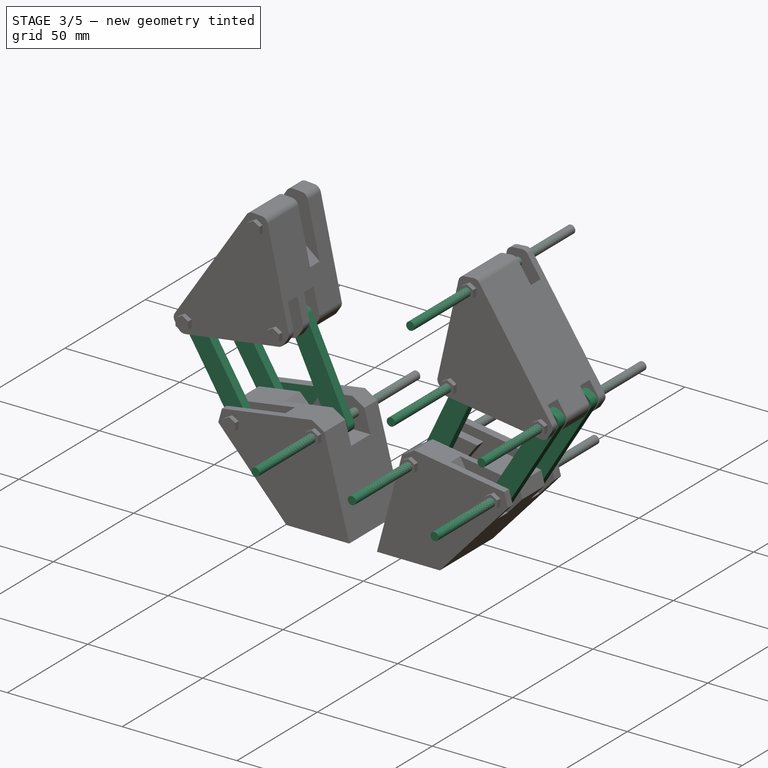
[diagram: stage 3 of 5 — iso view after this stage's code; geometry added in this stage tinted green]
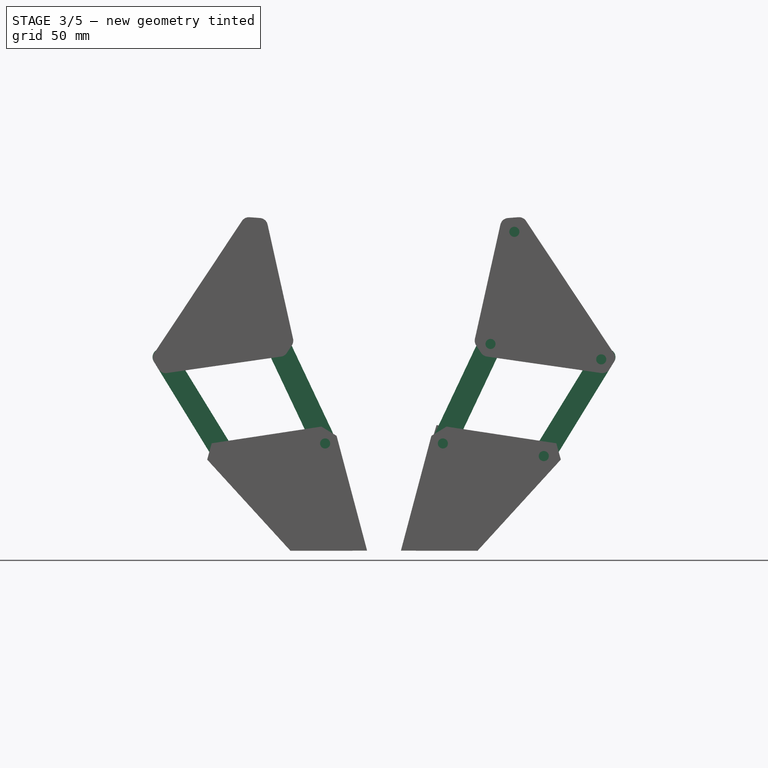
[diagram: stage 3 of 5 — front view after this stage's code; geometry added in this stage tinted green]
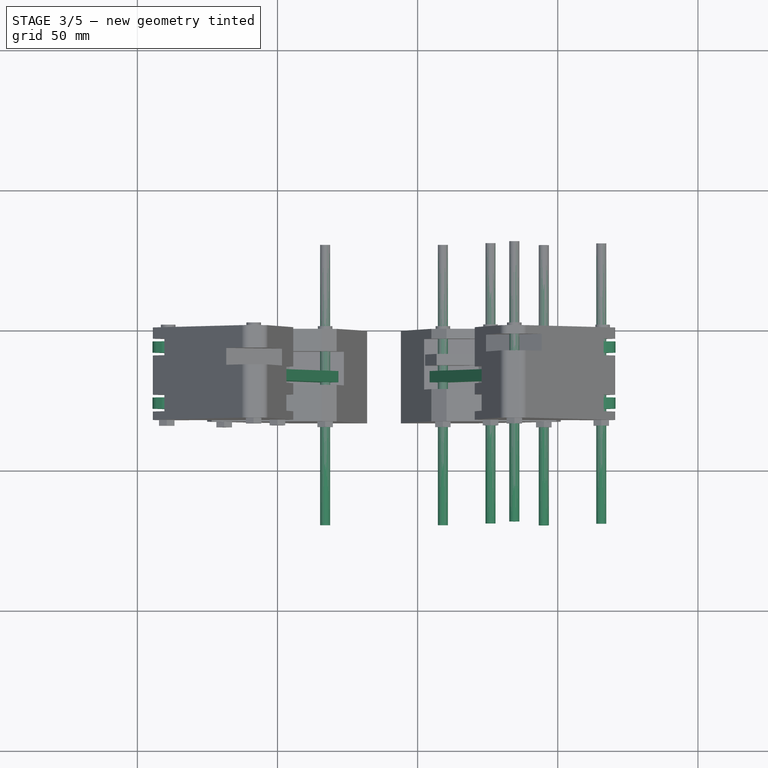
[diagram: stage 3 of 5 — top view after this stage's code; geometry added in this stage tinted green]
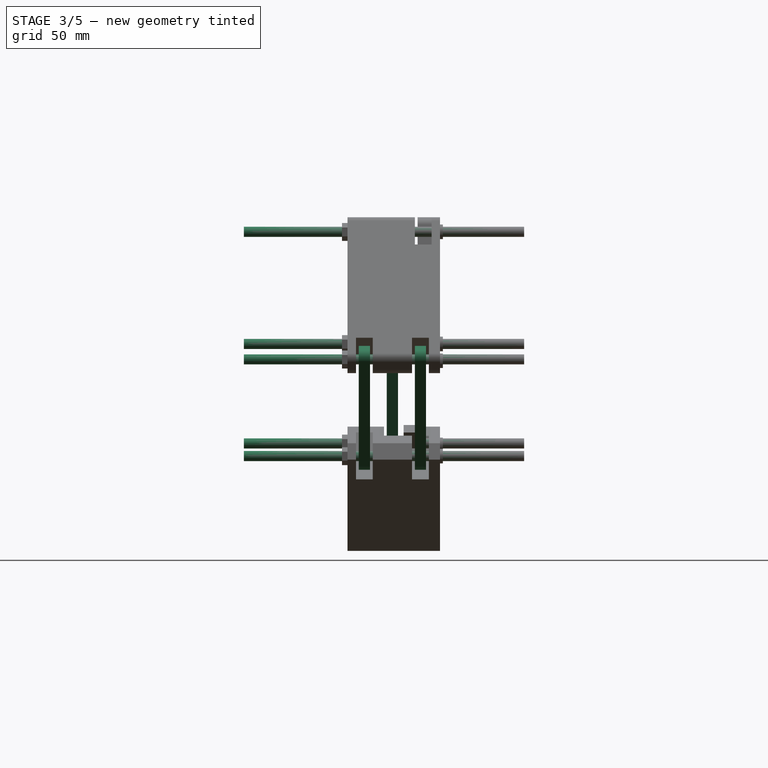
[diagram: stage 3 of 5 — right view after this stage's code; geometry added in this stage tinted green]
FEATURE [Part::Cylinder] Cylinder007  label="Cilindro007"
  Angle = 360
  Height = 100
  Placement = pos=(17,30,-35.5) rot=(1,0,0;1.5708rad)
  Radius = 1.8
FEATURE [Sketcher::SketchObject] Sketch007
  Placement = pos=(0,-5,0) rot=(1,0,0;1.5708rad)
  sketch-geometry (4):
    g0: LineSegment StartX=-45.7022 StartY=-3.72195 StartZ=0 EndX=-38.9083 EndY=0.415547 EndZ=0
    g1: LineSegment StartX=-38.9083 StartY=0.415547 StartZ=0 EndX=-12.9682 EndY=-41.8491 EndZ=0
    g2: LineSegment StartX=-12.9682 StartY=-41.8491 StartZ=0 EndX=-19.7621 EndY=-45.9866 EndZ=0
    g3: LineSegment StartX=-19.7621 StartY=-45.9866 StartZ=0 EndX=-45.7022 EndY=-3.72195 EndZ=0
  constraints (6):
    c: Coincident(g0,g1)
    c: Coincident(g1,g2)
    c: Coincident(g2,g3)
    c: Coincident(g3,g0)
    c: Parallel(g3,g1)
    c: Parallel(g2,g0)
FEATURE [Sketcher::SketchObject] Sketch008
  Placement = pos=(0,-15,0) rot=(1,0,0;1.5708rad)
  sketch-geometry (4):
    g0: LineSegment StartX=-5.8347 StartY=2.47919 StartZ=0 EndX=2.12677 EndY=5.59698 EndZ=0
    g1: LineSegment StartX=2.12677 StartY=5.59698 StartZ=0 EndX=22.8292 EndY=-38.2205 EndZ=0
    g2: LineSegment StartX=22.8292 StartY=-38.2205 StartZ=0 EndX=14.8678 EndY=-41.3383 EndZ=0
    g3: LineSegment StartX=14.8678 StartY=-41.3383 StartZ=0 EndX=-5.8347 EndY=2.47919 EndZ=0
  constraints (6):
    c: Coincident(g0,g1)
    c: Coincident(g1,g2)
    c: Coincident(g2,g3)
    c: Coincident(g3,g0)
    c: Parallel(g3,g1)
    c: Parallel(g2,g0)
FEATURE [Sketcher::SketchObject] Sketch009
  Placement = pos=(0,-9,0) rot=(1,0,0;1.5708rad)
  sketch-geometry (4):
    g0: LineSegment StartX=-15.1215 StartY=38.0643 StartZ=0 EndX=-11.4967 EndY=45.8979 EndZ=0
    g1: LineSegment StartX=-11.4967 StartY=45.8979 StartZ=0 EndX=43.8982 EndY=24.8483 EndZ=0
    g2: LineSegment StartX=43.8982 StartY=24.8483 StartZ=0 EndX=40.2735 EndY=17.0147 EndZ=0
    g3: LineSegment StartX=40.2735 StartY=17.0147 StartZ=0 EndX=-15.1215 EndY=38.0643 EndZ=0
  constraints (6):
    c: Coincident(g0,g1)
    c: Coincident(g1,g2)
    c: Coincident(g2,g3)
    c: Coincident(g3,g0)
    c: Parallel(g3,g1)
    c: Parallel(g2,g0)
FEATURE [Sketcher::SketchObject] Sketch010
  Placement = pos=(0,-9,0) rot=(1,0,0;1.5708rad)
  sketch-geometry (4):
    g0: LineSegment StartX=36.0124 StartY=27.9384 StartZ=0 EndX=43.3266 EndY=25.1327 EndZ=0
    g1: LineSegment StartX=43.3266 StartY=25.1327 StartZ=0 EndX=19.3358 EndY=-40.7949 EndZ=0
    g2: LineSegment StartX=19.3358 StartY=-40.7949 StartZ=0 EndX=12.0216 EndY=-37.9892 EndZ=0
    g3: LineSegment StartX=12.0216 StartY=-37.9892 StartZ=0 EndX=36.0124 EndY=27.9384 EndZ=0
  constraints (6):
    c: Coincident(g0,g1)
    c: Coincident(g1,g2)
    c: Coincident(g2,g3)
    c: Coincident(g3,g0)
    c: Parallel(g3,g1)
    c: Parallel(g2,g0)
FEATURE [PartDesign::Pad] Pad003
  Length = 4
  Length2 = 100
  Placement = pos=(0,-5,0) rot=(1,0,0;1.5708rad)
  Sketch = -> Sketch007
  Type = 0
FEATURE [PartDesign::Pad] Pad004
  Length = 4
  Length2 = 100
  Placement = pos=(0,-15,0) rot=(1,0,0;1.5708rad)
  Sketch = -> Sketch008
  Type = 0
FEATURE [Sketcher::SketchObject] Sketch011
  Placement = pos=(0,-25,0) rot=(1,0,0;1.5708rad)
  sketch-geometry (4):
    g0: LineSegment StartX=-45.7022 StartY=-3.72195 StartZ=0 EndX=-38.9083 EndY=0.415547 EndZ=0
    g1: LineSegment StartX=-38.9083 StartY=0.415547 StartZ=0 EndX=-12.9682 EndY=-41.8491 EndZ=0
    g2: LineSegment StartX=-12.9682 StartY=-41.8491 StartZ=0 EndX=-19.7621 EndY=-45.9866 EndZ=0
    g3: LineSegment StartX=-19.7621 StartY=-45.9866 StartZ=0 EndX=-45.7022 EndY=-3.72195 EndZ=0
  constraints (6):
    c: Coincident(g0,g1)
    c: Coincident(g1,g2)
    c: Coincident(g2,g3)
    c: Coincident(g3,g0)
    c: Parallel(g3,g1)
    c: Parallel(g2,g0)
FEATURE [PartDesign::Pad] Pad007
  Length = 4
  Length2 = 100
  Placement = pos=(0,-25,0) rot=(1,0,0;1.5708rad)
  Sketch = -> Sketch011
  Type = 0
FEATURE [Part::Fillet] Fillet001
  Base = -> Pad003
  Edges = 4 edges r=3: [Edge1,Edge2,Edge5,Edge8]
FEATURE [Part::Fillet] Fillet002
  Base = -> Pad007
  Edges = 4 edges r=3: [Edge1,Edge2,Edge5,Edge8]
FEATURE [Part::Fillet] Fillet003
  Base = -> Pad004
  Edges = 4 edges r=3: [Edge1,Edge2,Edge5,Edge8]
FEATURE [Sketcher::SketchObject] Sketch023
  Placement = pos=(0,0,0) rot=(0.926703,-0.265728,0.265728;1.64685rad)
  sketch-geometry (6):
    g0: LineSegment StartX=-40.7654 StartY=19.725 StartZ=0 EndX=-40.7654 EndY=12.9153 EndZ=0
    g1: LineSegment StartX=-40.7654 StartY=12.9153 StartZ=0 EndX=-0.0823442 EndY=-5.03519 EndZ=0
    g2: LineSegment StartX=-0.0823442 StartY=-5.03519 StartZ=0 EndX=5.26188 EndY=-2.60545 EndZ=0
    g3: LineSegment StartX=5.26188 StartY=-2.60545 StartZ=0 EndX=20.3177 EndY=40.0856 EndZ=0
    g4: LineSegment StartX=20.3177 StartY=40.0856 StartZ=0 EndX=14.0989 EndY=44.6607 EndZ=0
    g5: LineSegment StartX=14.0989 StartY=44.6607 StartZ=0 EndX=-40.7654 EndY=19.725 EndZ=0
  constraints (7):
    c: Vertical(g0)
    c: Coincident(g0,g1)
    c: Coincident(g1,g2)
    c: Coincident(g2,g3)
    c: Coincident(g3,g4)
    c: Coincident(g4,g5)
    c: Coincident(g5,g0)
FEATURE [Part::Cylinder] Cylinder008  label="Cilindro008"
  Angle = 360
  Height = 100
  Placement = pos=(-8.5,30,40) rot=(1,0,0;1.5708rad)
  Radius = 1.8
FEATURE [Part::Cylinder] Cylinder012  label="Cilindro012"
  Angle = 360
  Height = 100
  Placement = pos=(0,30,0) rot=(1,0,0;1.5708rad)
  Radius = 1.8
FEATURE [Part::Cylinder] Cylinder013  label="Cilindro013"
  Angle = 360
  Height = 100
  Placement = pos=(-39.5,30,-5.5) rot=(1,0,0;1.5708rad)
  Radius = 1.8
FEATURE [Part::Cylinder] Cylinder014  label="Cilindro014"
  Angle = 360
  Height = 100
  Placement = pos=(-19,30,-40) rot=(1,0,0;1.5708rad)
  Radius = 1.8
FEATURE [Part::Cylinder] Cylinder015  label="Cilindro015"
  Angle = 360
  Height = 100
  Placement = pos=(17,30,-35.5) rot=(1,0,0;1.5708rad)
  Radius = 1.8
FEATURE [Sketcher::SketchObject] Sketch024
  Placement = pos=(0,-5,0) rot=(1,0,0;1.5708rad)
  sketch-geometry (4):
    g0: LineSegment StartX=-45.7022 StartY=-3.72195 StartZ=0 EndX=-38.9083 EndY=0.415547 EndZ=0
    g1: LineSegment StartX=-38.9083 StartY=0.415547 StartZ=0 EndX=-12.9682 EndY=-41.8491 EndZ=0
    g2: LineSegment StartX=-12.9682 StartY=-41.8491 StartZ=0 EndX=-19.7621 EndY=-45.9866 EndZ=0
    g3: LineSegment StartX=-19.7621 StartY=-45.9866 StartZ=0 EndX=-45.7022 EndY=-3.72195 EndZ=0
  constraints (6):
    c: Coincident(g0,g1)
    c: Coincident(g1,g2)
    c: Coincident(g2,g3)
    c: Coincident(g3,g0)
    c: Parallel(g3,g1)
    c: Parallel(g2,g0)
FEATURE [Sketcher::SketchObject] Sketch025
  Placement = pos=(0,-15,0) rot=(1,0,0;1.5708rad)
  sketch-geometry (4):
    g0: LineSegment StartX=-5.8347 StartY=2.47919 StartZ=0 EndX=2.12677 EndY=5.59698 EndZ=0
    g1: LineSegment StartX=2.12677 StartY=5.59698 StartZ=0 EndX=22.8292 EndY=-38.2205 EndZ=0
    g2: LineSegment StartX=22.8292 StartY=-38.2205 StartZ=0 EndX=14.8678 EndY=-41.3383 EndZ=0
    g3: LineSegment StartX=14.8678 StartY=-41.3383 StartZ=0 EndX=-5.8347 EndY=2.47919 EndZ=0
  constraints (6):
    c: Coincident(g0,g1)
    c: Coincident(g1,g2)
    c: Coincident(g2,g3)
    c: Coincident(g3,g0)
    c: Parallel(g3,g1)
    c: Parallel(g2,g0)
FEATURE [PartDesign::Pad] Pad020
  Length = 4
  Length2 = 100
  Placement = pos=(0,-5,0) rot=(1,0,0;1.5708rad)
  Sketch = -> Sketch024
  Type = 0
FEATURE [PartDesign::Pad] Pad021
  Length = 4
  Length2 = 100
  Placement = pos=(0,-15,0) rot=(1,0,0;1.5708rad)
  Sketch = -> Sketch025
  Type = 0
FEATURE [Sketcher::SketchObject] Sketch028
  Placement = pos=(0,-25,0) rot=(1,0,0;1.5708rad)
  sketch-geometry (4):
    g0: LineSegment StartX=-45.7022 StartY=-3.72195 StartZ=0 EndX=-38.9083 EndY=0.415547 EndZ=0
    g1: LineSegment StartX=-38.9083 StartY=0.415547 StartZ=0 EndX=-12.9682 EndY=-41.8491 EndZ=0
    g2: LineSegment StartX=-12.9682 StartY=-41.8491 StartZ=0 EndX=-19.7621 EndY=-45.9866 EndZ=0
    g3: LineSegment StartX=-19.7621 StartY=-45.9866 StartZ=0 EndX=-45.7022 EndY=-3.72195 EndZ=0
  constraints (6):
    c: Coincident(g0,g1)
    c: Coincident(g1,g2)
    c: Coincident(g2,g3)
    c: Coincident(g3,g0)
    c: Parallel(g3,g1)
    c: Parallel(g2,g0)
FEATURE [PartDesign::Pad] Pad024
  Length = 4
  Length2 = 100
  Placement = pos=(0,-25,0) rot=(1,0,0;1.5708rad)
  Sketch = -> Sketch028
  Type = 0
FEATURE [Part::Fillet] Fillet015
  Base = -> Pad020
  Edges = 4 edges r=3: [Edge1,Edge2,Edge5,Edge8]
FEATURE [Part::Fillet] Fillet016
  Base = -> Pad024
  Edges = 4 edges r=3: [Edge1,Edge2,Edge5,Edge8]
FEATURE [Part::Fillet] Fillet017
  Base = -> Pad021
  Edges = 4 edges r=3: [Edge1,Edge2,Edge5,Edge8]
FEATURE [Part::Mirroring] Part__Mirroring003  label="Cilindro008 (Mirror #4)"
  Base = (0,0,0)
  Normal = (1,0,0)
  Placement = pos=(76,0,0) rot=(0,0,1;0rad)
  Source = -> Cylinder008
FEATURE [Part::Mirroring] Part__Mirroring006  label="Cilindro012 (Mirror #7)"
  Base = (0,0,0)
  Normal = (1,0,0)
  Placement = pos=(76,0,0) rot=(0,0,1;0rad)
  Source = -> Cylinder012
FEATURE [Part::Mirroring] Part__Mirroring007  label="Cilindro013 (Mirror #8)"
  Base = (0,0,0)
  Normal = (1,0,0)
  Placement = pos=(76,0,0) rot=(0,0,1;0rad)
  Source = -> Cylinder013
FEATURE [Part::Mirroring] Part__Mirroring008  label="Cilindro014 (Mirror #9)"
  Base = (0,0,0)
  Normal = (1,0,0)
  Placement = pos=(76,0,0) rot=(0,0,1;0rad)
  Source = -> Cylinder014
FEATURE [Part::Mirroring] Part__Mirroring009  label="Cilindro015 (Mirror #10)"
  Base = (0,0,0)
  Normal = (1,0,0)
  Placement = pos=(76,0,0) rot=(0,0,1;0rad)
  Source = -> Cylinder015
FEATURE [Part::Mirroring] Part__Mirroring011  label="Fillet015 (Mirror #12)"
  Base = (0,0,0)
  Normal = (1,0,0)
  Placement = pos=(76,0,0) rot=(0,0,1;0rad)
  Source = -> Fillet015
FEATURE [Part::Mirroring] Part__Mirroring012  label="Fillet016 (Mirror #13)"
  Base = (0,0,0)
  Normal = (1,0,0)
  Placement = pos=(76,0,0) rot=(0,0,1;0rad)
  Source = -> Fillet016
FEATURE [Part::Mirroring] Part__Mirroring013  label="Fillet017 (Mirror #14)"
  Base = (0,0,0)
  Normal = (1,0,0)
  Placement = pos=(76,0,0) rot=(0,0,1;0rad)
  Source = -> Fillet017
FEATURE [Sketcher::SketchObject] Sketch040
  Placement = pos=(0,-4,0) rot=(1,0,0;1.5708rad)
  sketch-geometry (4):
    g0: LineSegment StartX=-22.8766 StartY=-50.4589 StartZ=0 EndX=-2.79575 EndY=-40.4184 EndZ=0
    g1: LineSegment StartX=-2.79575 StartY=-40.4184 StartZ=0 EndX=3.5228 EndY=-28.9065 EndZ=0
    g2: LineSegment StartX=3.5228 StartY=-28.9065 StartZ=0 EndX=-39.4087 EndY=-32.8015 EndZ=0
    g3: LineSegment StartX=-39.4087 StartY=-32.8015 StartZ=0 EndX=-22.8766 EndY=-50.4589 EndZ=0
  constraints (4):
    c: Coincident(g0,g1)
    c: Coincident(g1,g2)
    c: Coincident(g2,g3)
    c: Coincident(g3,g0)
FEATURE [PartDesign::Pad] Pad036
  Length = 6
  Length2 = 100
  Placement = pos=(0,-4,0) rot=(1,0,0;1.5708rad)
  Sketch = -> Sketch040
  Type = 0
FEATURE [Part::Cut] Cut008
  Base = -> Cut007
  Tool = -> Pad037
FEATURE [Part::Cut] Cut009
  Base = -> Cut008
  Tool = -> Pad036
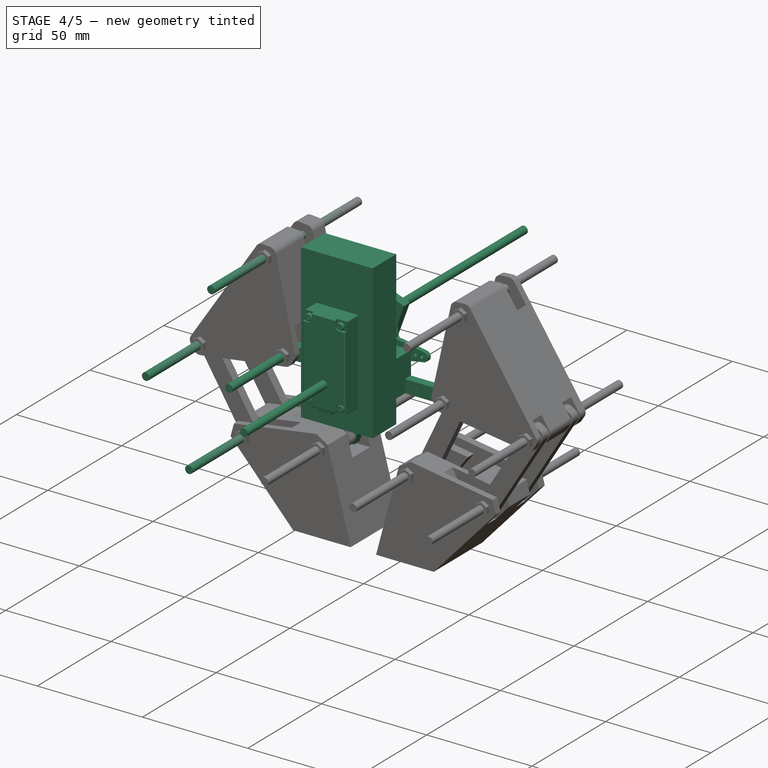
[diagram: stage 4 of 5 — iso view after this stage's code; geometry added in this stage tinted green]
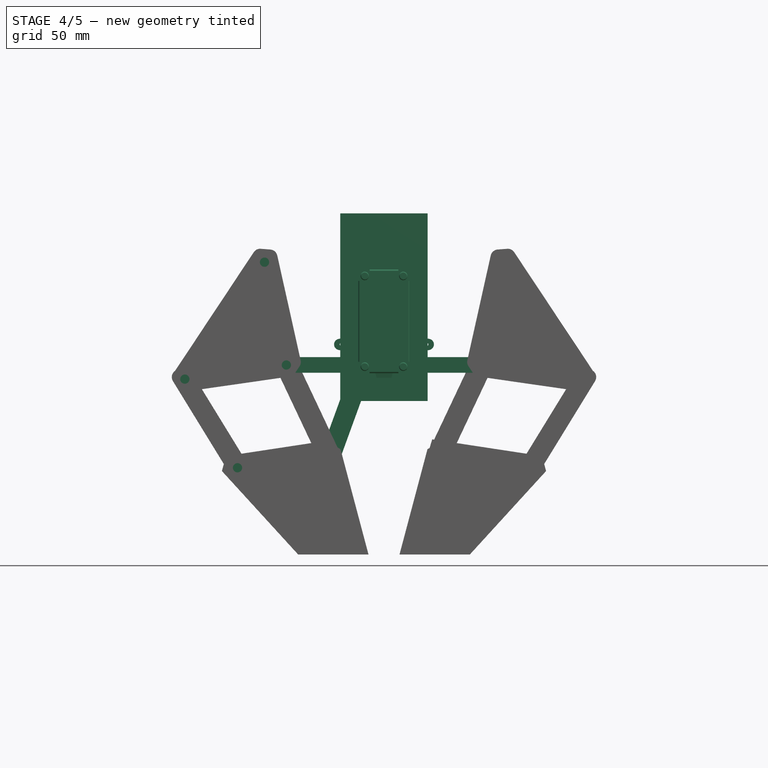
[diagram: stage 4 of 5 — front view after this stage's code; geometry added in this stage tinted green]
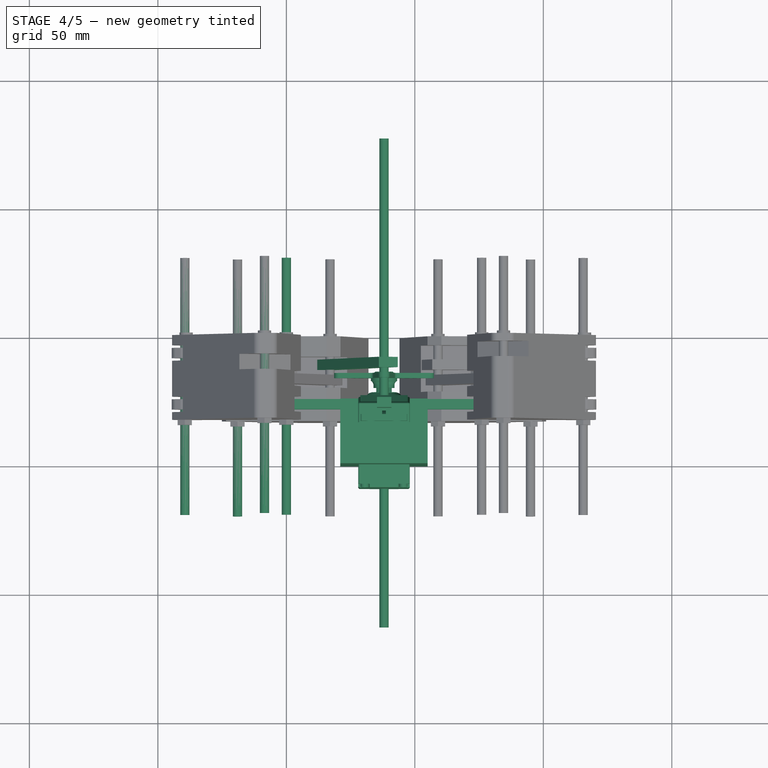
[diagram: stage 4 of 5 — top view after this stage's code; geometry added in this stage tinted green]
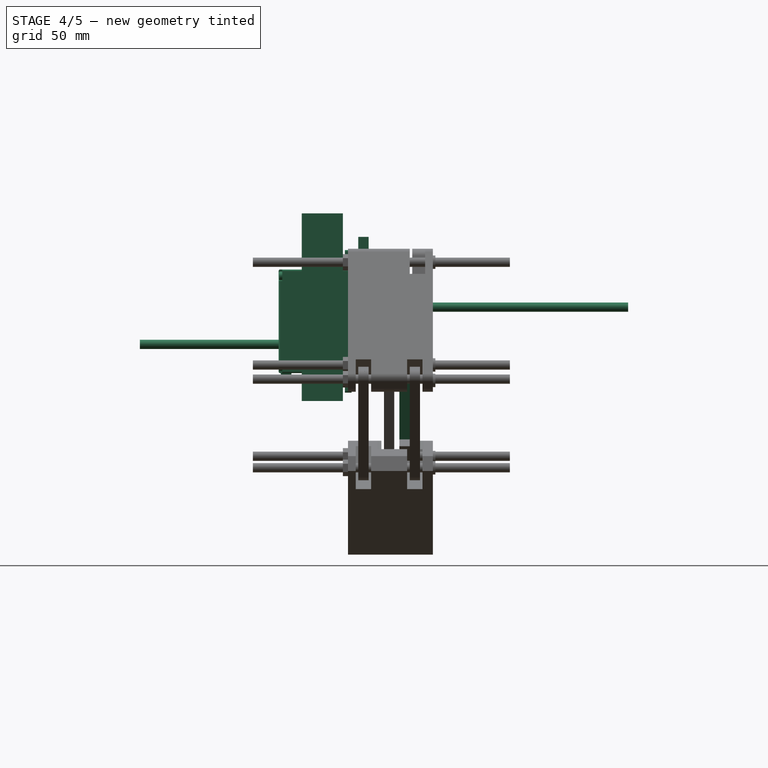
[diagram: stage 4 of 5 — right view after this stage's code; geometry added in this stage tinted green]
FEATURE [Sketcher::SketchObject] Sketch
  Placement = pos=(0,0,0) rot=(1,0,0;1.5708rad)
  sketch-geometry (14):
    g0: LineSegment StartX=0 StartY=0 StartZ=0 EndX=38 EndY=0 EndZ=0
    g1: LineSegment StartX=38 StartY=0 StartZ=0 EndX=38 EndY=7.8 EndZ=0
    g2: LineSegment StartX=38 StartY=7.8 StartZ=0 EndX=38.0534 EndY=22.7999 EndZ=0
    g3: LineSegment StartX=0 StartY=0 StartZ=0 EndX=17.0275 EndY=-35.4197 EndZ=0
    g4: LineSegment StartX=38.0534 StartY=22.7999 StartZ=0 EndX=-8.67747 EndY=40.5827 EndZ=0
    g5: LineSegment StartX=-8.67747 StartY=40.5827 StartZ=0 EndX=0 EndY=0 EndZ=0
    g6: LineSegment StartX=0 StartY=0 StartZ=0 EndX=-39.6762 EndY=-5.81477 EndZ=0
    g7: LineSegment StartX=-39.6762 StartY=-5.81477 StartZ=0 EndX=-8.67747 EndY=40.5827 EndZ=0
    g8: LineSegment StartX=-39.6762 StartY=-5.81477 StartZ=0 EndX=-19.4318 EndY=-39.616 EndZ=0
    g9: LineSegment StartX=-19.4318 StartY=-39.616 StartZ=0 EndX=17.0275 EndY=-35.4197 EndZ=0
    g10: LineSegment StartX=17.0275 StartY=-35.4197 StartZ=0 EndX=30.2556 EndY=-82.6004 EndZ=0
    g11: LineSegment StartX=30.2556 StartY=-82.6004 StartZ=0 EndX=-19.4318 EndY=-39.616 EndZ=0
    g12: LineSegment StartX=17.0275 StartY=-35.4197 StartZ=0 EndX=38.0534 EndY=22.7999 EndZ=0
    g13: LineSegment StartX=-3.01779 StartY=-84.3544 StartZ=0 EndX=82.2553 EndY=-84.3544 EndZ=0
  constraints (34):
    c: Coincident(g-1,g0)
    c: Horizontal(g0)
    c: Coincident(g0,g1)
    c: Vertical(g1)
    c: Coincident(g1,g2)
    c: Coincident(g3,g-1)
    c: Coincident(g4,g2)
    c: Coincident(g5,g4)
    c: Coincident(g5,g-1)
    c: Coincident(g6,g-1)
    c: Coincident(g7,g6)
    c: Coincident(g7,g4)
    c: Coincident(g8,g6)
    c: Coincident(g8,g9)
    c: Coincident(g9,g3)
    c: Coincident(g9,g10)
    c: Coincident(g10,g11)
    c: Coincident(g11,g9)
    c: Coincident(g12,g3)
    c: Coincident(g12,g2)
    c: Distance(g7) = 55.8
    c: Distance(g6) = 40.1
    c: Distance(g5) = 41.5
    c: Distance(g4) = 50
    c: Distance(g8) = 39.4
    c: Distance(g3) = 39.3
    c: Distance(g9) = 36.7
    c: Distance(g11) = 65.7
    c: Distance(g10) = 49
    c: Distance(g12) = 61.9
    c: Distance(g0) = 38
    c: Distance(g1) = 7.8
    c: Distance(g2) = 15
    c: Horizontal(g13)
FEATURE [Sketcher::SketchObject] Sketch001
  Placement = pos=(-15,0,-10) rot=(0.913318,-0.287968,0.287968;1.66134rad)
  sketch-geometry (6):
    g0: LineSegment StartX=-26.1846 StartY=-19.8249 StartZ=0 EndX=-21.5367 EndY=-15.9796 EndZ=0
    g1: LineSegment StartX=-21.5367 StartY=-15.9796 StartZ=0 EndX=13.9632 EndY=-33.5618 EndZ=0
    g2: LineSegment StartX=13.9632 StartY=-33.5618 StartZ=0 EndX=16.4973 EndY=-39.3555 EndZ=0
    g3: LineSegment StartX=16.4973 StartY=-39.3555 StartZ=0 EndX=1.91251 EndY=-79.158 EndZ=0
    g4: LineSegment StartX=1.91251 StartY=-79.158 StartZ=0 EndX=-20.507 EndY=-63.5274 EndZ=0
    g5: LineSegment StartX=-20.507 StartY=-63.5274 StartZ=0 EndX=-26.1846 EndY=-19.8249 EndZ=0
  constraints (6):
    c: Coincident(g0,g1)
    c: Coincident(g1,g2)
    c: Coincident(g2,g3)
    c: Coincident(g3,g4)
    c: Coincident(g4,g5)
    c: Coincident(g5,g0)
FEATURE [Sketcher::SketchObject] Sketch002
  Placement = pos=(0,0,0) rot=(0.926703,-0.265728,0.265728;1.64685rad)
  sketch-geometry (6):
    g0: LineSegment StartX=-40.7654 StartY=19.725 StartZ=0 EndX=-40.7654 EndY=12.9153 EndZ=0
    g1: LineSegment StartX=-40.7654 StartY=12.9153 StartZ=0 EndX=-0.0823442 EndY=-5.03519 EndZ=0
    g2: LineSegment StartX=-0.0823442 StartY=-5.03519 StartZ=0 EndX=5.26188 EndY=-2.60545 EndZ=0
    g3: LineSegment StartX=5.26188 StartY=-2.60545 StartZ=0 EndX=20.3177 EndY=40.0856 EndZ=0
    g4: LineSegment StartX=20.3177 StartY=40.0856 StartZ=0 EndX=14.0989 EndY=44.6607 EndZ=0
    g5: LineSegment StartX=14.0989 StartY=44.6607 StartZ=0 EndX=-40.7654 EndY=19.725 EndZ=0
  constraints (7):
    c: Vertical(g0)
    c: Coincident(g0,g1)
    c: Coincident(g1,g2)
    c: Coincident(g2,g3)
    c: Coincident(g3,g4)
    c: Coincident(g4,g5)
    c: Coincident(g5,g0)
FEATURE [Part::Cylinder] Cylinder  label="Cilindro"
  Angle = 360
  Height = 100
  Placement = pos=(-8.5,30,40) rot=(1,0,0;1.5708rad)
  Radius = 1.8
FEATURE [Part::Cylinder] Cylinder001  label="Cilindro001"
  Angle = 360
  Height = 4
  Placement = pos=(0,1,0) rot=(1,0,0;1.5708rad)
  Radius = 2.6
FEATURE [Part::Cylinder] Cylinder002  label="Cilindro002"
  Angle = 360
  Height = 100
  Placement = pos=(38,76,22.5) rot=(1,0,0;1.5708rad)
  Radius = 1.8
FEATURE [Part::Cylinder] Cylinder003  label="Cilindro003"
  Angle = 360
  Height = 100
  Placement = pos=(38,-14,8) rot=(1,0,0;1.5708rad)
  Radius = 1.8
FEATURE [Part::Cylinder] Cylinder004  label="Cilindro004"
  Angle = 360
  Height = 100
  Placement = pos=(0,30,0) rot=(1,0,0;1.5708rad)
  Radius = 1.8
FEATURE [Part::Cylinder] Cylinder005  label="Cilindro005"
  Angle = 360
  Height = 100
  Placement = pos=(-39.5,30,-5.5) rot=(1,0,0;1.5708rad)
  Radius = 1.8
FEATURE [Part::Cylinder] Cylinder006  label="Cilindro006"
  Angle = 360
  Height = 100
  Placement = pos=(-19,30,-40) rot=(1,0,0;1.5708rad)
  Radius = 1.8
FEATURE [Sketcher::SketchObject] Sketch003
  Placement = pos=(0,-25,0) rot=(1,0,0;1.5708rad)
  sketch-geometry (13):
    g0: LineSegment StartX=-4.14949 StartY=3.07202 StartZ=0 EndX=31.4361 EndY=3.07202 EndZ=0
    g1: LineSegment StartX=79.8505 StartY=3.07202 StartZ=0 EndX=79.8505 EndY=-3.0271 EndZ=0
    g2: LineSegment StartX=79.8505 StartY=-3.0271 StartZ=0 EndX=-4.14949 EndY=-3.0271 EndZ=0
    g3: LineSegment StartX=-4.14949 StartY=-3.0271 StartZ=0 EndX=-4.14949 EndY=3.07202 EndZ=0
    g4: LineSegment StartX=44.676 StartY=3.07202 StartZ=0 EndX=44.676 EndY=10.5544 EndZ=0
    g5: LineSegment StartX=44.676 StartY=10.5544 StartZ=0 EndX=40.8523 EndY=14.4187 EndZ=0
    g6: LineSegment StartX=35.2636 StartY=14.4187 StartZ=0 EndX=31.4361 EndY=10.5452 EndZ=0
    g7: LineSegment StartX=31.4361 StartY=10.5452 StartZ=0 EndX=31.4361 EndY=3.07202 EndZ=0
    g8: Circle [constr] CenterX=38.058 CenterY=7.82976 CenterZ=0 NormalX=0 NormalY=0 NormalZ=1 Radius=7.157
    g9: LineSegment StartX=44.676 StartY=3.07202 StartZ=0 EndX=79.8505 EndY=3.07202 EndZ=0
    g10: LineSegment StartX=35.2636 StartY=14.4187 StartZ=0 EndX=35.2636 EndY=49.8416 EndZ=0
    g11: LineSegment StartX=35.2636 StartY=49.8416 StartZ=0 EndX=40.8523 EndY=49.8416 EndZ=0
    g12: LineSegment StartX=40.8523 StartY=49.8416 StartZ=0 EndX=40.8523 EndY=14.4187 EndZ=0
  constraints (26):
    c: Coincident(g9,g1)
    c: Coincident(g1,g2)
    c: Coincident(g2,g3)
    c: Coincident(g3,g0)
    c: Horizontal(g0)
    c: Horizontal(g2)
    c: Vertical(g1)
    c: Vertical(g3)
    c: Distance(g2) = 84
    c: Coincident(g4,g5)
    c: Coincident(g6,g7)
    c: PointOnObject(g4,g8)
    c: PointOnObject(g5,g8)
    c: PointOnObject(g6,g8)
    c: PointOnObject(g6,g8)
    c: Tangent(g0,g9)
    c: Coincident(g4,g9)
    c: Coincident(g0,g7)
    c: Vertical(g7)
    c: Vertical(g4)
    c: Vertical(g10)
    c: Coincident(g10,g11)
    c: Coincident(g11,g12)
    c: Coincident(g12,g5)
    c: Vertical(g12)
    c: Horizontal(g11)
FEATURE [Sketcher::SketchObject] Sketch004
  Placement = pos=(0,0,0) rot=(1,0,0;1.5708rad)
  sketch-geometry (13):
    g0: LineSegment StartX=0 StartY=0 StartZ=0 EndX=38 EndY=0 EndZ=0
    g1: LineSegment StartX=38 StartY=0 StartZ=0 EndX=38 EndY=7.8 EndZ=0
    g2: LineSegment StartX=38 StartY=7.8 StartZ=0 EndX=38.048 EndY=22.7999 EndZ=0
    g3: LineSegment StartX=0 StartY=0 StartZ=0 EndX=17.0252 EndY=-35.4208 EndZ=0
    g4: LineSegment StartX=38.048 StartY=22.7999 StartZ=0 EndX=-8.68337 EndY=40.5814 EndZ=0
    g5: LineSegment StartX=-8.68337 StartY=40.5814 StartZ=0 EndX=0 EndY=0 EndZ=0
    g6: LineSegment StartX=0 StartY=0 StartZ=0 EndX=-39.6753 EndY=-5.82054 EndZ=0
    g7: LineSegment StartX=-39.6753 StartY=-5.82054 StartZ=0 EndX=-8.68337 EndY=40.5814 EndZ=0
    g8: LineSegment StartX=-39.6753 StartY=-5.82054 StartZ=0 EndX=-19.4334 EndY=-39.6233 EndZ=0
    g9: LineSegment StartX=-19.4334 StartY=-39.6233 StartZ=0 EndX=17.0252 EndY=-35.4208 EndZ=0
    g10: LineSegment StartX=17.0252 StartY=-35.4208 StartZ=0 EndX=30.2612 EndY=-82.5993 EndZ=0
    g11: LineSegment StartX=30.2612 StartY=-82.5993 StartZ=0 EndX=-19.4334 EndY=-39.6233 EndZ=0
    g12: LineSegment StartX=17.0252 StartY=-35.4208 StartZ=0 EndX=38.048 EndY=22.7999 EndZ=0
  constraints (33):
    c: Coincident(g-1,g0)
    c: Horizontal(g0)
    c: Coincident(g0,g1)
    c: Vertical(g1)
    c: Coincident(g1,g2)
    c: Coincident(g3,g-1)
    c: Coincident(g4,g2)
    c: Coincident(g5,g4)
    c: Coincident(g5,g-1)
    c: Coincident(g6,g-1)
    c: Coincident(g7,g6)
    c: Coincident(g7,g4)
    c: Coincident(g8,g6)
    c: Coincident(g8,g9)
    c: Coincident(g9,g3)
    c: Coincident(g9,g10)
    c: Coincident(g10,g11)
    c: Coincident(g11,g9)
    c: Coincident(g12,g3)
    c: Coincident(g12,g2)
    c: Distance(g7) = 55.8
    c: Distance(g6) = 40.1
    c: Distance(g5) = 41.5
    c: Distance(g4) = 50
    c: Distance(g8) = 39.4
    c: Distance(g3) = 39.3
    c: Distance(g9) = 36.7
    c: Distance(g11) = 65.7
    c: Distance(g10) = 49
    c: Distance(g12) = 61.9
    c: Distance(g0) = 38
    c: Distance(g1) = 7.8
    c: Distance(g2) = 15
FEATURE [Sketcher::SketchObject] Sketch005
  Placement = pos=(-15,0,-10) rot=(0.913318,-0.287968,0.287968;1.66134rad)
  sketch-geometry (6):
    g0: LineSegment StartX=-26.1846 StartY=-19.8249 StartZ=0 EndX=-21.4804 EndY=-15.8574 EndZ=0
    g1: LineSegment StartX=-21.4804 StartY=-15.8574 StartZ=0 EndX=13.9069 EndY=-33.684 EndZ=0
    g2: LineSegment StartX=13.9069 StartY=-33.684 StartZ=0 EndX=16.4973 EndY=-39.3555 EndZ=0
    g3: LineSegment StartX=16.4973 StartY=-39.3555 StartZ=0 EndX=-3.03216 EndY=-92.4592 EndZ=0
    g4: LineSegment StartX=-3.03216 StartY=-92.4592 StartZ=0 EndX=-8.04727 EndY=-92.4592 EndZ=0
    g5: LineSegment StartX=-8.04727 StartY=-92.4592 StartZ=0 EndX=-26.1846 EndY=-19.8249 EndZ=0
  constraints (7):
    c: Coincident(g0,g1)
    c: Coincident(g1,g2)
    c: Coincident(g2,g3)
    c: Coincident(g3,g4)
    c: Horizontal(g4)
    c: Coincident(g4,g5)
    c: Coincident(g5,g0)
FEATURE [Sketcher::SketchObject] Sketch006
  Placement = pos=(0,0,0) rot=(0.926703,-0.265728,0.265728;1.64685rad)
  sketch-geometry (6):
    g0: LineSegment StartX=-40.7654 StartY=19.725 StartZ=0 EndX=-40.7654 EndY=12.9153 EndZ=0
    g1: LineSegment StartX=-40.7654 StartY=12.9153 StartZ=0 EndX=-0.0823442 EndY=-5.03519 EndZ=0
    g2: LineSegment StartX=-0.0823442 StartY=-5.03519 StartZ=0 EndX=5.26188 EndY=-2.60545 EndZ=0
    g3: LineSegment StartX=5.26188 StartY=-2.60545 StartZ=0 EndX=20.3177 EndY=40.0856 EndZ=0
    g4: LineSegment StartX=20.3177 StartY=40.0856 StartZ=0 EndX=14.0989 EndY=44.6607 EndZ=0
    g5: LineSegment StartX=14.0989 StartY=44.6607 StartZ=0 EndX=-40.7654 EndY=19.725 EndZ=0
  constraints (7):
    c: Vertical(g0)
    c: Coincident(g0,g1)
    c: Coincident(g1,g2)
    c: Coincident(g2,g3)
    c: Coincident(g3,g4)
    c: Coincident(g4,g5)
    c: Coincident(g5,g0)
FEATURE [Part::Mirroring] Part__Mirroring  label="Sketch004 (Mirror #1)"
  Base = (0,0,0)
  Normal = (1,0,0)
  Placement = pos=(76,0,0) rot=(0,0,1;0rad)
  Source = -> Sketch004
FEATURE [Part::Mirroring] Part__Mirroring001  label="Sketch005 (Mirror #2)"
  Base = (0,0,0)
  Normal = (1,0,0)
  Placement = pos=(76,0,0) rot=(0,0,1;0rad)
  Source = -> Sketch005
FEATURE [Part::Mirroring] Part__Mirroring002  label="Sketch006 (Mirror #3)"
  Base = (0,0,0)
  Normal = (1,0,0)
  Placement = pos=(76,0,0) rot=(0,0,1;0rad)
  Source = -> Sketch006
FEATURE [PartDesign::Pad] Pad
  Length = 33
  Length2 = 100
  Placement = pos=(0,0,0) rot=(0.926703,-0.265728,0.265728;1.64685rad)
  Sketch = -> Sketch002
  Type = 0
FEATURE [PartDesign::Pad] Pad005
  Length = 4
  Length2 = 100
  Placement = pos=(0,-9,0) rot=(1,0,0;1.5708rad)
  Sketch = -> Sketch010
  Type = 0
FEATURE [Part::Fillet] Fillet008
  Base = -> Pad
  Edges = 2 edges r=3: [Edge11,Edge14]
FEATURE [Part::Fillet] Fillet009
  Base = -> Fillet008
  Edges = 4 edges r=3: [Edge3,Edge14,Edge22,Edge24]
FEATURE [Sketcher::SketchObject] Sketch035
  Placement = pos=(0,-8,0) rot=(1,0,0;1.5708rad)
  sketch-geometry (4):
    g0: LineSegment StartX=-14.595 StartY=49.4268 StartZ=0 EndX=-21.1147 EndY=37.734 EndZ=0
    g1: LineSegment StartX=-21.1147 StartY=37.734 StartZ=0 EndX=4.39696 EndY=17.3955 EndZ=0
    g2: LineSegment StartX=4.39696 StartY=17.3955 StartZ=0 EndX=4.39696 EndY=50.9858 EndZ=0
    g3: LineSegment StartX=4.39696 StartY=50.9858 StartZ=0 EndX=-14.595 EndY=49.4268 EndZ=0
  constraints (5):
    c: Coincident(g0,g1)
    c: Coincident(g1,g2)
    c: Vertical(g2)
    c: Coincident(g2,g3)
    c: Coincident(g3,g0)
FEATURE [PartDesign::Pad] Pad031
  Length = 6
  Length2 = 100
  Placement = pos=(0,-8,0) rot=(1,0,0;1.5708rad)
  Sketch = -> Sketch035
  Type = 0
FEATURE [Sketcher::SketchObject] Sketch036
  Placement = pos=(0,-4,0) rot=(1,0,0;1.5708rad)
  sketch-geometry (3):
    g0: LineSegment StartX=-44.7162 StartY=4.03934 StartZ=0 EndX=-16.0865 EndY=-8.00782 EndZ=0
    g1: LineSegment StartX=-16.0865 StartY=-8.00782 StartZ=0 EndX=-47.1257 EndY=-16.7243 EndZ=0
    g2: LineSegment StartX=-47.1257 StartY=-16.7243 StartZ=0 EndX=-44.7162 EndY=4.03934 EndZ=0
  constraints (3):
    c: Coincident(g0,g1)
    c: Coincident(g1,g2)
    c: Coincident(g2,g0)
FEATURE [PartDesign::Pad] Pad032
  Length = 6
  Length2 = 100
  Placement = pos=(0,-4,0) rot=(1,0,0;1.5708rad)
  Sketch = -> Sketch036
  Type = 0
FEATURE [Sketcher::SketchObject] Sketch037
  Placement = pos=(0,-24,0) rot=(1,0,0;1.5708rad)
  sketch-geometry (3):
    g0: LineSegment StartX=-44.7162 StartY=4.03934 StartZ=0 EndX=-16.0865 EndY=-8.00782 EndZ=0
    g1: LineSegment StartX=-16.0865 StartY=-8.00782 StartZ=0 EndX=-47.1257 EndY=-16.7243 EndZ=0
    g2: LineSegment StartX=-47.1257 StartY=-16.7243 StartZ=0 EndX=-44.7162 EndY=4.03934 EndZ=0
  constraints (3):
    c: Coincident(g0,g1)
    c: Coincident(g1,g2)
    c: Coincident(g2,g0)
FEATURE [PartDesign::Pad] Pad033
  Length = 6
  Length2 = 100
  Placement = pos=(0,-24,0) rot=(1,0,0;1.5708rad)
  Sketch = -> Sketch037
  Type = 0
FEATURE [Sketcher::SketchObject] Sketch038
  Placement = pos=(0,-14,0) rot=(1,0,0;1.5708rad)
  sketch-geometry (5):
    g0: LineSegment StartX=5.3678 StartY=13.6808 StartZ=0 EndX=-7.45792 EndY=6.84038 EndZ=0
    g1: LineSegment StartX=-7.45792 StartY=6.84038 StartZ=0 EndX=-11.7332 EndY=-9.12051 EndZ=0
    g2: LineSegment StartX=-11.7332 StartY=-9.12051 StartZ=0 EndX=13.2532 EndY=-11.5906 EndZ=0
    g3: LineSegment StartX=13.2532 StartY=-11.5906 StartZ=0 EndX=11.4481 EndY=11.6857 EndZ=0
    g4: LineSegment StartX=11.4481 StartY=11.6857 StartZ=0 EndX=5.3678 EndY=13.6808 EndZ=0
  constraints (5):
    c: Coincident(g0,g1)
    c: Coincident(g1,g2)
    c: Coincident(g2,g3)
    c: Coincident(g3,g4)
    c: Coincident(g4,g0)
FEATURE [PartDesign::Pad] Pad034
  Length = 6
  Length2 = 100
  Placement = pos=(0,-14,0) rot=(1,0,0;1.5708rad)
  Sketch = -> Sketch038
  Type = 0
FEATURE [Sketcher::SketchObject] Sketch039
  Placement = pos=(0,-24,0) rot=(1,0,0;1.5708rad)
  sketch-geometry (5):
    g0: LineSegment StartX=5.3678 StartY=13.6808 StartZ=0 EndX=-7.45792 EndY=6.84038 EndZ=0
    g1: LineSegment StartX=-7.45792 StartY=6.84038 StartZ=0 EndX=-11.7332 EndY=-9.12051 EndZ=0
    g2: LineSegment StartX=-11.7332 StartY=-9.12051 StartZ=0 EndX=13.2532 EndY=-11.5906 EndZ=0
    g3: LineSegment StartX=13.2532 StartY=-11.5906 StartZ=0 EndX=11.4481 EndY=11.6857 EndZ=0
    g4: LineSegment StartX=11.4481 StartY=11.6857 StartZ=0 EndX=5.3678 EndY=13.6808 EndZ=0
  constraints (5):
    c: Coincident(g0,g1)
    c: Coincident(g1,g2)
    c: Coincident(g2,g3)
    c: Coincident(g3,g4)
    c: Coincident(g4,g0)
FEATURE [PartDesign::Pad] Pad035
  Length = 6
  Length2 = 100
  Placement = pos=(0,-24,0) rot=(1,0,0;1.5708rad)
  Sketch = -> Sketch039
  Type = 0
FEATURE [Part::Cut] Cut002
  Base = -> Fillet009
  Tool = -> Pad035
FEATURE [Part::Cut] Cut003
  Base = -> Cut002
  Tool = -> Pad034
FEATURE [Part::Cut] Cut004
  Base = -> Cut003
  Tool = -> Pad033
FEATURE [Part::Cut] Cut005
  Base = -> Cut004
  Tool = -> Pad032
FEATURE [Part::Cut] Cut006
  Base = -> Cut005
  Tool = -> Pad031
FEATURE [Part::Feature] Part__Feature  label="Servo-Futaba3003-final"
  shape: bbox 55.5 x 20 x 41.74 mm, 365 faces (baked)
FEATURE [Part::Feature] Part__Feature001  label="4-arms-horn-final"
  Placement = pos=(9,0,43) rot=(0,0,1;0rad)
  shape: bbox 38.85 x 38.85 x 6.3 mm, 96 faces (baked)
FEATURE [Part::MultiFuse] Fusion015
  Placement = pos=(38,-60,17) rot=(-0.57735,0.57735,0.57735;2.0944rad)
  Shapes = -> [Part__Feature001,Part__Feature]
FEATURE [Part::Box] Box  label="Cubo"
  Height = 73
  Length = 34
  Placement = pos=(21,-51,-14) rot=(0,0,1;0rad)
  Width = 16
FEATURE [Part::Box] Box001  label="Cubo001"
  Height = 17
  Length = 34
  Placement = pos=(21,-41,-3) rot=(0,0,1;0rad)
  Width = 16
FEATURE [Sketcher::SketchObject] Sketch068
  Placement = pos=(0,-25,0) rot=(1,0,0;1.5708rad)
  sketch-geometry (13):
    g0: LineSegment StartX=-4.14949 StartY=3.07202 StartZ=0 EndX=31.4361 EndY=3.07202 EndZ=0
    g1: LineSegment StartX=79.8505 StartY=3.07202 StartZ=0 EndX=79.8505 EndY=-3.0271 EndZ=0
    g2: LineSegment StartX=79.8505 StartY=-3.0271 StartZ=0 EndX=-4.14949 EndY=-3.0271 EndZ=0
    g3: LineSegment StartX=-4.14949 StartY=-3.0271 StartZ=0 EndX=-4.14949 EndY=3.07202 EndZ=0
    g4: LineSegment StartX=44.676 StartY=3.07202 StartZ=0 EndX=44.676 EndY=10.5544 EndZ=0
    g5: LineSegment StartX=44.676 StartY=10.5544 StartZ=0 EndX=40.8523 EndY=14.4187 EndZ=0
    g6: LineSegment StartX=35.2636 StartY=14.4187 StartZ=0 EndX=31.4361 EndY=10.5452 EndZ=0
    g7: LineSegment StartX=31.4361 StartY=10.5452 StartZ=0 EndX=31.4361 EndY=3.07202 EndZ=0
    g8: Circle [constr] CenterX=38.058 CenterY=7.82976 CenterZ=0 NormalX=0 NormalY=0 NormalZ=1 Radius=7.157
    g9: LineSegment StartX=44.676 StartY=3.07202 StartZ=0 EndX=79.8505 EndY=3.07202 EndZ=0
    g10: LineSegment StartX=35.2636 StartY=14.4187 StartZ=0 EndX=35.2636 EndY=49.8416 EndZ=0
    g11: LineSegment StartX=35.2636 StartY=49.8416 StartZ=0 EndX=40.8523 EndY=49.8416 EndZ=0
    g12: LineSegment StartX=40.8523 StartY=49.8416 StartZ=0 EndX=40.8523 EndY=14.4187 EndZ=0
  constraints (26):
    c: Coincident(g9,g1)
    c: Coincident(g1,g2)
    c: Coincident(g2,g3)
    c: Coincident(g3,g0)
    c: Horizontal(g0)
    c: Horizontal(g2)
    c: Vertical(g1)
    c: Vertical(g3)
    c: Distance(g2) = 84
    c: Coincident(g4,g5)
    c: Coincident(g6,g7)
    c: PointOnObject(g4,g8)
    c: PointOnObject(g5,g8)
    c: PointOnObject(g6,g8)
    c: PointOnObject(g6,g8)
    c: Tangent(g0,g9)
    c: Coincident(g4,g9)
    c: Coincident(g0,g7)
    c: Vertical(g7)
    c: Vertical(g4)
    c: Vertical(g10)
    c: Coincident(g10,g11)
    c: Coincident(g11,g12)
    c: Coincident(g12,g5)
    c: Vertical(g12)
    c: Horizontal(g11)
FEATURE [PartDesign::Pad] Pad064
  Length = 4
  Length2 = 100
  Placement = pos=(0,-25,0) rot=(1,0,0;1.5708rad)
  Sketch = -> Sketch068
  Type = 0
FEATURE [Part::Fillet] Fillet023
  Base = -> Pad064
  Edges = 4 edges r=3: [Edge2,Edge5,Edge8,Edge11]
FEATURE [Part::Fillet] Fillet024
  Base = -> Fillet023
  Edges = 2 edges r=6: [Edge3,Edge48]
FEATURE [Part::MultiFuse] Fusion016
  Shapes = -> [Box,Box001,Fillet024]
FEATURE [Part::Cut] Cut020
  Base = -> Fusion016
  Tool = -> Fusion015
FEATURE [Part::Feature] Part__Feature002  label="Servo-Futaba3003-final001"
  shape: bbox 55.5 x 20 x 41.74 mm, 365 faces (baked)
FEATURE [Part::Feature] Part__Feature003  label="4-arms-horn-final001"
  Placement = pos=(9,0,43) rot=(0,0,1;0rad)
  shape: bbox 38.85 x 38.85 x 6.3 mm, 96 faces (baked)
FEATURE [Part::MultiFuse] Fusion017
  Placement = pos=(38,-60,17) rot=(-0.57735,0.57735,0.57735;2.0944rad)
  Shapes = -> [Part__Feature003,Part__Feature002]
FEATURE [App::DocumentObjectGroup] Grupo
  Group = -> [Fillet001,Fillet002,Fillet003,Cut009,Part__Mirroring018,Part__Mirroring019,Cut019,Pad063,Part__Mirroring013,Part__Mirroring012,Part__Mirroring011,Cylinder016,Cylinder017,Cylinder018,Cylinder019,Cylinder022,Cylinder023,Cylinder024,Cylinder025,Cylinder026,Pad052,Pad053,Pad054,Pad055,Pad056,Part__Mirroring020,Cylinder,Cylinder001,Cylinder002,Cylinder003,Cylinder004,Cylinder005,Cylinder006,+6 more]
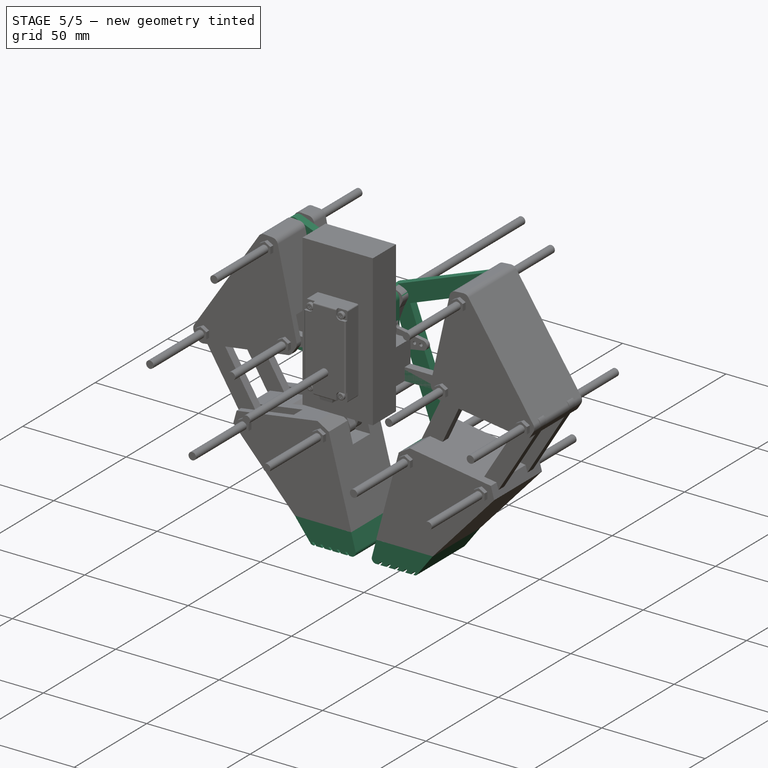
[diagram: stage 5 of 5 — iso view after this stage's code; geometry added in this stage tinted green]
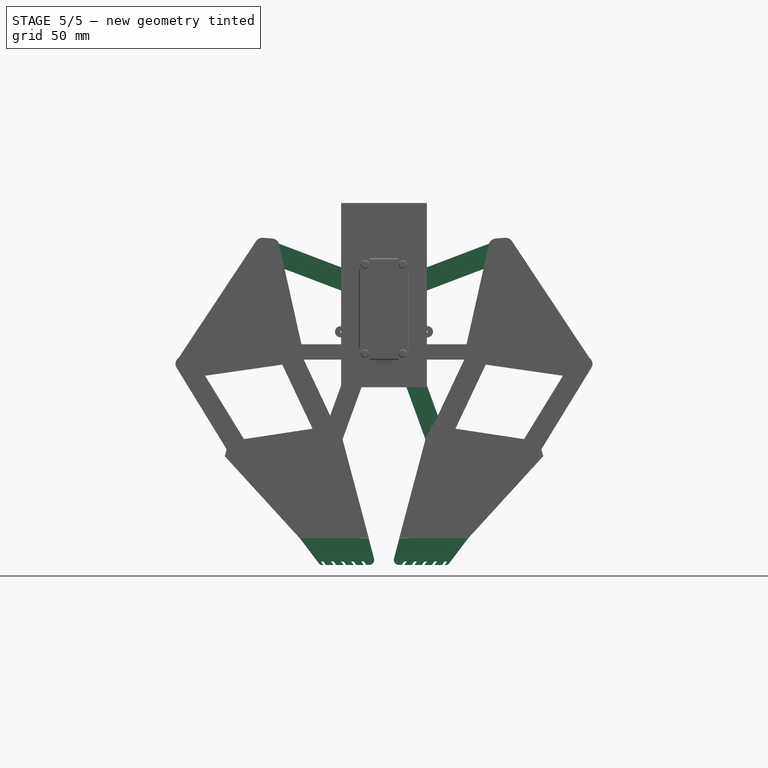
[diagram: stage 5 of 5 — front view after this stage's code; geometry added in this stage tinted green]
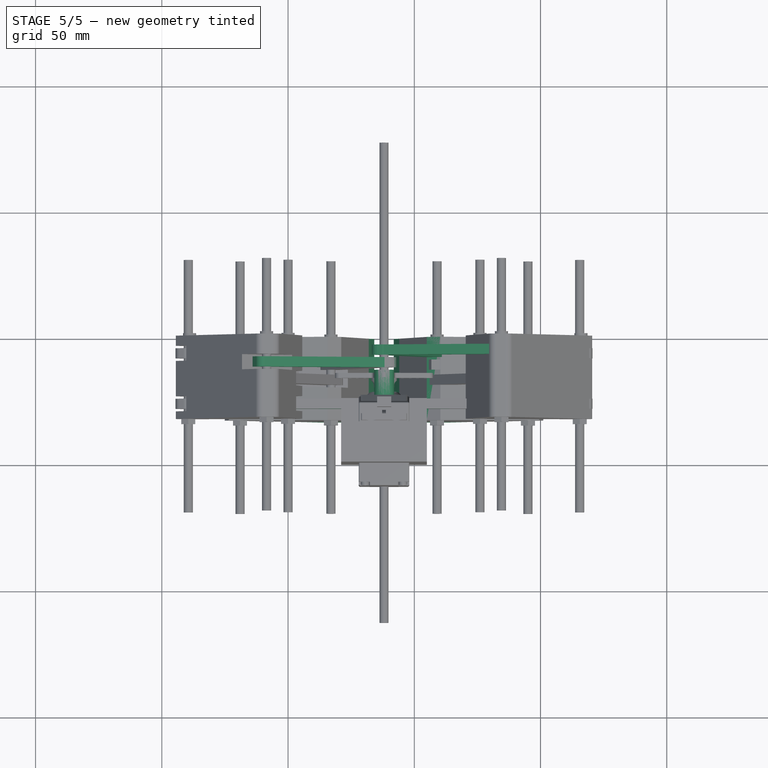
[diagram: stage 5 of 5 — top view after this stage's code; geometry added in this stage tinted green]
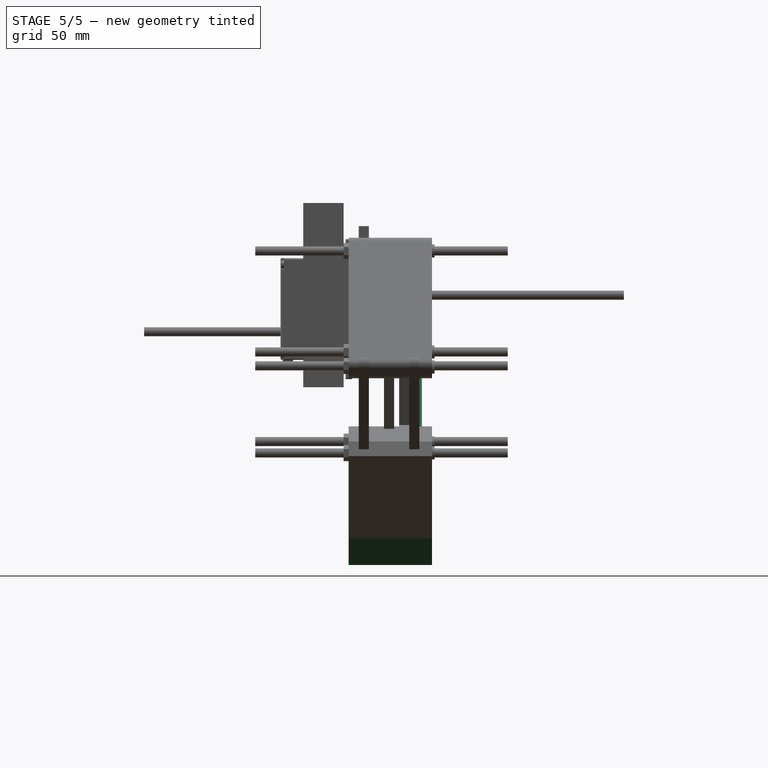
[diagram: stage 5 of 5 — right view after this stage's code; geometry added in this stage tinted green]
FEATURE [PartDesign::Pad] Pad002
  Length = 4
  Length2 = 100
  Placement = pos=(0,-25,0) rot=(1,0,0;1.5708rad)
  Sketch = -> Sketch003
  Type = 0
FEATURE [PartDesign::Pad] Pad006
  Length = 4
  Length2 = 100
  Placement = pos=(0,-9,0) rot=(1,0,0;1.5708rad)
  Sketch = -> Sketch009
  Type = 0
FEATURE [Sketcher::SketchObject] Sketch012
  Placement = pos=(0,-14,0) rot=(1,0,0;1.5708rad)
  sketch-geometry (4):
    g0: ArcOfCircle CenterX=38.0741 CenterY=7.82003 CenterZ=0 NormalX=0 NormalY=0 NormalZ=1 Radius=3.94535 StartAngle=3.14159 EndAngle=6.28319
    g1: ArcOfCircle CenterX=38.0741 CenterY=23.4274 CenterZ=0 NormalX=0 NormalY=0 NormalZ=1 Radius=3.94535 StartAngle=0 EndAngle=3.14159
    g2: LineSegment StartX=42.0195 StartY=7.82003 StartZ=0 EndX=42.0195 EndY=23.4274 EndZ=0
    g3: LineSegment StartX=34.1288 StartY=7.82003 StartZ=0 EndX=34.1288 EndY=23.4274 EndZ=0
  constraints (6):
    c: Tangent(g0,g3) = 1.5708
    c: Tangent(g0,g2) = -1.5708
    c: Tangent(g2,g1) = -1.5708
    c: Tangent(g3,g1) = 1.5708
    c: Vertical(g2)
    c: Equal(g0,g1)
FEATURE [PartDesign::Pad] Pad008
  Length = 10
  Length2 = 100
  Placement = pos=(0,-14,0) rot=(1,0,0;1.5708rad)
  Sketch = -> Sketch012
  Type = 0
FEATURE [Part::Fillet] Fillet
  Base = -> Pad006
  Edges = 4 edges r=3: [Edge1,Edge2,Edge5,Edge8]
FEATURE [Part::Fillet] Fillet004
  Base = -> Pad005
  Edges = 4 edges r=3: [Edge1,Edge2,Edge5,Edge8]
FEATURE [Part::Fillet] Fillet005
  Base = -> Pad002
  Edges = 4 edges r=3: [Edge2,Edge5,Edge8,Edge11]
FEATURE [Part::Fillet] Fillet006
  Base = -> Fillet005
  Edges = 2 edges r=6: [Edge3,Edge48]
FEATURE [Sketcher::SketchObject] Sketch019
  Placement = pos=(0,0,0) rot=(1,0,0;1.5708rad)
  sketch-geometry (24):
    g0: LineSegment StartX=31.9221 StartY=-73.7642 StartZ=0 EndX=34.7157 EndY=-84.3474 EndZ=0
    g1: LineSegment StartX=34.7157 StartY=-84.3474 StartZ=0 EndX=31.0042 EndY=-84.3474 EndZ=0
    g2: LineSegment StartX=31.0042 StartY=-84.3474 StartZ=0 EndX=29.9949 EndY=-83.0102 EndZ=0
    g3: LineSegment StartX=29.9949 StartY=-83.0102 StartZ=0 EndX=29.0048 EndY=-82.9974 EndZ=0
    g4: LineSegment StartX=29.0048 StartY=-82.9974 StartZ=0 EndX=29.9744 EndY=-84.3565 EndZ=0
    g5: LineSegment StartX=29.9744 StartY=-84.3565 StartZ=0 EndX=27.0013 EndY=-84.3565 EndZ=0
    g6: LineSegment StartX=27.0013 StartY=-84.3565 StartZ=0 EndX=25.9942 EndY=-83.0138 EndZ=0
    g7: LineSegment StartX=25.9942 StartY=-83.0138 StartZ=0 EndX=24.9776 EndY=-83.0138 EndZ=0
    g8: LineSegment StartX=24.9776 StartY=-83.0138 StartZ=0 EndX=26.0038 EndY=-84.3756 EndZ=0
    g9: LineSegment StartX=26.0038 StartY=-84.3756 StartZ=0 EndX=23.0075 EndY=-84.3756 EndZ=0
    g10: LineSegment StartX=23.0075 StartY=-84.3756 StartZ=0 EndX=22.0197 EndY=-83.0236 EndZ=0
    g11: LineSegment StartX=22.0197 StartY=-83.0236 StartZ=0 EndX=20.9743 EndY=-83.0236 EndZ=0
    g12: LineSegment StartX=20.9743 StartY=-83.0236 StartZ=0 EndX=22.0005 EndY=-84.3663 EndZ=0
    g13: LineSegment StartX=22.0005 StartY=-84.3663 StartZ=0 EndX=19.0178 EndY=-84.3663 EndZ=0
    g14: LineSegment StartX=19.0178 StartY=-84.3663 StartZ=0 EndX=17.9916 EndY=-83.0045 EndZ=0
    g15: LineSegment StartX=17.9916 StartY=-83.0045 StartZ=0 EndX=16.9846 EndY=-83.0045 EndZ=0
    g16: LineSegment StartX=16.9846 StartY=-83.0045 StartZ=0 EndX=18.0012 EndY=-84.3663 EndZ=0
    g17: LineSegment StartX=18.0012 StartY=-84.3663 StartZ=0 EndX=15.0322 EndY=-84.3663 EndZ=0
    g18: LineSegment StartX=15.0322 StartY=-84.3663 StartZ=0 EndX=14.0131 EndY=-83.0204 EndZ=0
    g19: LineSegment StartX=14.0131 StartY=-83.0204 StartZ=0 EndX=12.9823 EndY=-83.0204 EndZ=0
    g20: LineSegment StartX=12.9823 StartY=-83.0204 StartZ=0 EndX=14.0014 EndY=-84.3792 EndZ=0
    g21: LineSegment StartX=14.0014 StartY=-84.3792 StartZ=0 EndX=12.6817 EndY=-84.3792 EndZ=0
    g22: LineSegment StartX=12.6817 StartY=-84.3792 StartZ=0 EndX=4.6509 EndY=-73.7642 EndZ=0
    g23: LineSegment StartX=4.6509 StartY=-73.7642 StartZ=0 EndX=31.9221 EndY=-73.7642 EndZ=0
  constraints (35):
    c: Coincident(g0,g1)
    c: Horizontal(g1)
    c: Coincident(g1,g2)
    c: Coincident(g2,g3)
    c: Coincident(g3,g4)
    c: Coincident(g4,g5)
    c: Horizontal(g5)
    c: Coincident(g5,g6)
    c: Coincident(g6,g7)
    c: Horizontal(g7)
    c: Coincident(g7,g8)
    c: Coincident(g8,g9)
    c: Horizontal(g9)
    c: Coincident(g9,g10)
    c: Coincident(g10,g11)
    c: Horizontal(g11)
    c: Coincident(g11,g12)
    c: Coincident(g12,g13)
    c: Horizontal(g13)
    c: Coincident(g13,g14)
    c: Coincident(g14,g15)
    c: Horizontal(g15)
    c: Coincident(g15,g16)
    c: Coincident(g16,g17)
    c: Horizontal(g17)
    c: Coincident(g17,g18)
    c: Coincident(g18,g19)
    c: Horizontal(g19)
    c: Coincident(g19,g20)
    c: Coincident(g20,g21)
    c: Horizontal(g21)
    c: Coincident(g21,g22)
    c: Coincident(g22,g23)
    c: Coincident(g23,g0)
    c: Horizontal(g23)
FEATURE [PartDesign::Pad] Pad015
  Length = 33
  Length2 = 100
  Placement = pos=(0,0,0) rot=(1,0,0;1.5708rad)
  Sketch = -> Sketch019
  Type = 0
FEATURE [Sketcher::SketchObject] Sketch020
  Placement = pos=(-4,-7,0.4) rot=(1,0,0;1.5708rad)
  sketch-geometry (8):
    g0: LineSegment StartX=12.9217 StartY=-76.0433 StartZ=0 EndX=12.9217 EndY=-72.6813 EndZ=0
    g1: LineSegment StartX=12.9217 StartY=-72.6813 StartZ=0 EndX=10.907 EndY=-71.0645 EndZ=0
    g2: LineSegment StartX=10.907 StartY=-71.0645 StartZ=0 EndX=12.9496 EndY=-67.9874 EndZ=0
    g3: LineSegment StartX=12.9496 StartY=-67.9874 StartZ=0 EndX=17.8943 EndY=-67.9874 EndZ=0
    g4: LineSegment StartX=17.8943 StartY=-67.9874 StartZ=0 EndX=19.9533 EndY=-71.0124 EndZ=0
    g5: LineSegment StartX=19.9533 StartY=-71.0124 StartZ=0 EndX=17.9933 EndY=-72.6487 EndZ=0
    g6: LineSegment StartX=17.9933 StartY=-72.6487 StartZ=0 EndX=17.9811 EndY=-76.0433 EndZ=0
    g7: LineSegment StartX=17.9811 StartY=-76.0433 StartZ=0 EndX=12.9217 EndY=-76.0433 EndZ=0
  constraints (11):
    c: Vertical(g0)
    c: Coincident(g0,g1)
    c: Coincident(g1,g2)
    c: Coincident(g2,g3)
    c: Horizontal(g3)
    c: Coincident(g3,g4)
    c: Coincident(g4,g5)
    c: Coincident(g6,g7)
    c: Coincident(g7,g0)
    c: Horizontal(g7)
    c: Coincident(g5,g6)
FEATURE [PartDesign::Pad] Pad016
  Length = 20
  Length2 = 100
  Placement = pos=(-4,-7,0.4) rot=(1,0,0;1.5708rad)
  Sketch = -> Sketch020
  Type = 0
FEATURE [Part::MultiFuse] Fusion002
  Shapes = -> [Pad016,Pad015]
FEATURE [Sketcher::SketchObject] Sketch021
  Placement = pos=(10,-7,0.4) rot=(1,0,0;1.5708rad)
  sketch-geometry (8):
    g0: LineSegment StartX=12.9217 StartY=-76.0433 StartZ=0 EndX=12.9217 EndY=-72.6813 EndZ=0
    g1: LineSegment StartX=12.9217 StartY=-72.6813 StartZ=0 EndX=10.907 EndY=-71.0645 EndZ=0
    g2: LineSegment StartX=10.907 StartY=-71.0645 StartZ=0 EndX=12.9496 EndY=-67.9874 EndZ=0
    g3: LineSegment StartX=12.9496 StartY=-67.9874 StartZ=0 EndX=17.8943 EndY=-67.9874 EndZ=0
    g4: LineSegment StartX=17.8943 StartY=-67.9874 StartZ=0 EndX=19.9533 EndY=-71.0124 EndZ=0
    g5: LineSegment StartX=19.9533 StartY=-71.0124 StartZ=0 EndX=17.9933 EndY=-72.6487 EndZ=0
    g6: LineSegment StartX=17.9933 StartY=-72.6487 StartZ=0 EndX=17.9811 EndY=-76.0433 EndZ=0
    g7: LineSegment StartX=17.9811 StartY=-76.0433 StartZ=0 EndX=12.9217 EndY=-76.0433 EndZ=0
  constraints (11):
    c: Vertical(g0)
    c: Coincident(g0,g1)
    c: Coincident(g1,g2)
    c: Coincident(g2,g3)
    c: Horizontal(g3)
    c: Coincident(g3,g4)
    c: Coincident(g4,g5)
    c: Coincident(g6,g7)
    c: Coincident(g7,g0)
    c: Horizontal(g7)
    c: Coincident(g5,g6)
FEATURE [PartDesign::Pad] Pad017
  Length = 20
  Length2 = 100
  Placement = pos=(10,-7,0.4) rot=(1,0,0;1.5708rad)
  Sketch = -> Sketch021
  Type = 0
FEATURE [Part::MultiFuse] Fusion003
  Shapes = -> [Fusion002,Pad017]
FEATURE [Part::Fillet] Fillet010
  Base = -> Fusion003
  Edges = 8 edges r=1: [Edge2,Edge8,Edge30,Edge32,Edge117,Edge118,Edge119,Edge120]
FEATURE [Part::Fillet] Fillet011
  Base = -> Fillet010
  Edges = 4 edges r=0.4: [Edge19,Edge32,Edge39,Edge40]
FEATURE [Part::Fillet] Fillet012
  Base = -> Fillet011
  Edges = 1 edges r=1.5: [Edge59]
FEATURE [Part::Fillet] Fillet013
  Base = -> Fillet012
  Edges = 1 edges r=2: [Edge75]
FEATURE [Part::Cylinder] Cylinder010  label="Cilindro010"
  Angle = 360
  Height = 100
  Placement = pos=(38,76,22.5) rot=(1,0,0;1.5708rad)
  Radius = 1.8
FEATURE [Part::Cylinder] Cylinder011  label="Cilindro011"
  Angle = 360
  Height = 100
  Placement = pos=(38,-14,8) rot=(1,0,0;1.5708rad)
  Radius = 1.8
FEATURE [PartDesign::Pad] Pad018
  Length = 33
  Length2 = 100
  Placement = pos=(0,0,0) rot=(0.926703,-0.265728,0.265728;1.64685rad)
  Sketch = -> Sketch023
  Type = 0
FEATURE [Part::Fillet] Fillet019
  Base = -> Pad018
  Edges = 2 edges r=3: [Edge11,Edge14]
FEATURE [Part::Fillet] Fillet020
  Base = -> Fillet019
  Edges = 4 edges r=3: [Edge3,Edge14,Edge22,Edge24]
FEATURE [Part::Mirroring] Part__Mirroring004  label="Cilindro010 (Mirror #5)"
  Base = (0,0,0)
  Normal = (1,0,0)
  Placement = pos=(76,0,0) rot=(0,0,1;0rad)
  Source = -> Cylinder010
FEATURE [Part::Mirroring] Part__Mirroring005  label="Cilindro011 (Mirror #6)"
  Base = (0,0,0)
  Normal = (1,0,0)
  Placement = pos=(76,0,0) rot=(0,0,1;0rad)
  Source = -> Cylinder011
FEATURE [Part::Mirroring] Part__Mirroring010  label="Fillet014 (Mirror #11)"
  Base = (0,0,0)
  Normal = (1,0,0)
  Placement = pos=(76,0,0) rot=(0,0,1;0rad)
FEATURE [Part::Mirroring] Part__Mirroring014  label="Fillet018 (Mirror #15)"
  Base = (0,0,0)
  Normal = (1,0,0)
  Placement = pos=(76,0,0) rot=(0,0,1;0rad)
FEATURE [Part::Mirroring] Part__Mirroring015  label="Fillet020 (Mirror #16)"
  Base = (0,0,0)
  Normal = (1,0,0)
  Placement = pos=(76,0,0) rot=(0,0,1;0rad)
  Source = -> Fillet020
FEATURE [Part::Mirroring] Part__Mirroring016  label="Cut001 (Mirror #17)"
  Base = (0,0,0)
  Normal = (1,0,0)
  Placement = pos=(76,0,0) rot=(0,0,1;0rad)
FEATURE [Part::Mirroring] Part__Mirroring017  label="Fillet024 (Mirror #18)"
  Base = (0,0,0)
  Normal = (1,0,0)
  Placement = pos=(76,0,0) rot=(0,0,1;0rad)
FEATURE [Part::MultiFuse] Fusion008
  Shapes = -> [Part__Mirroring014,Part__Mirroring010]
FEATURE [Part::MultiFuse] Fusion009
  Shapes = -> [Fillet,Fillet004]
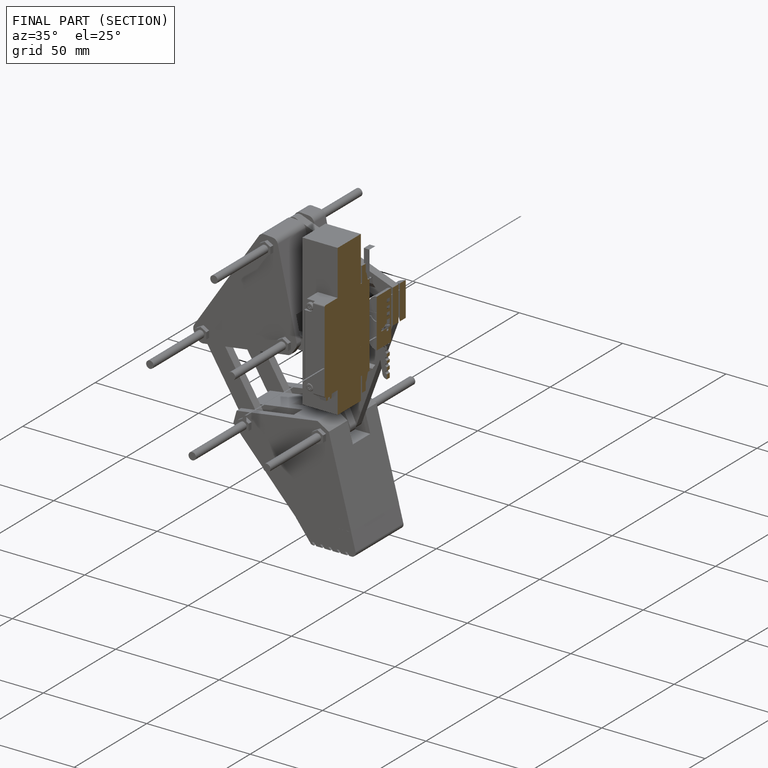
[diagram: finished part — half-section view (interior)]
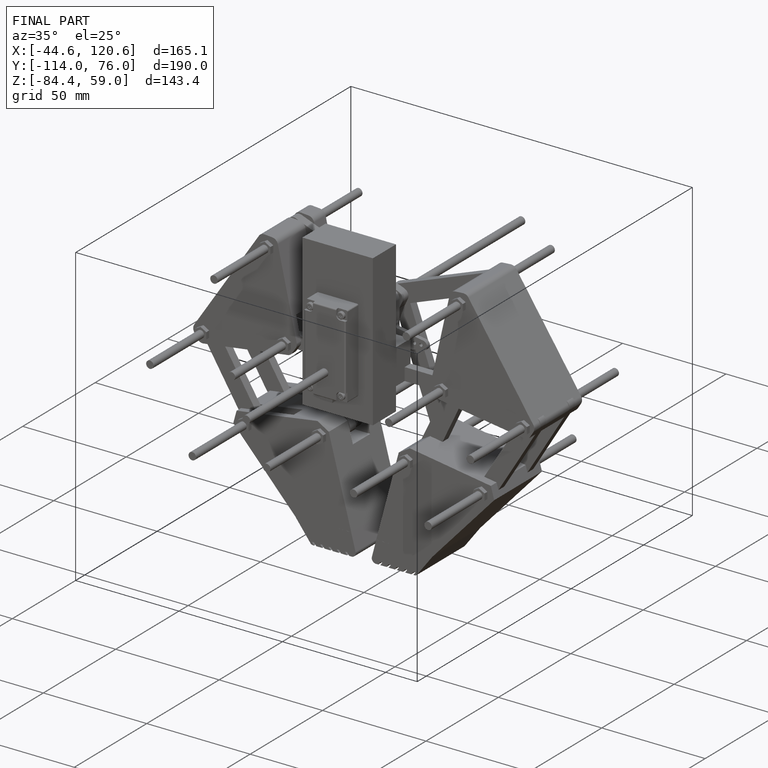
[diagram: finished part — iso view with bounding-box wireframe]
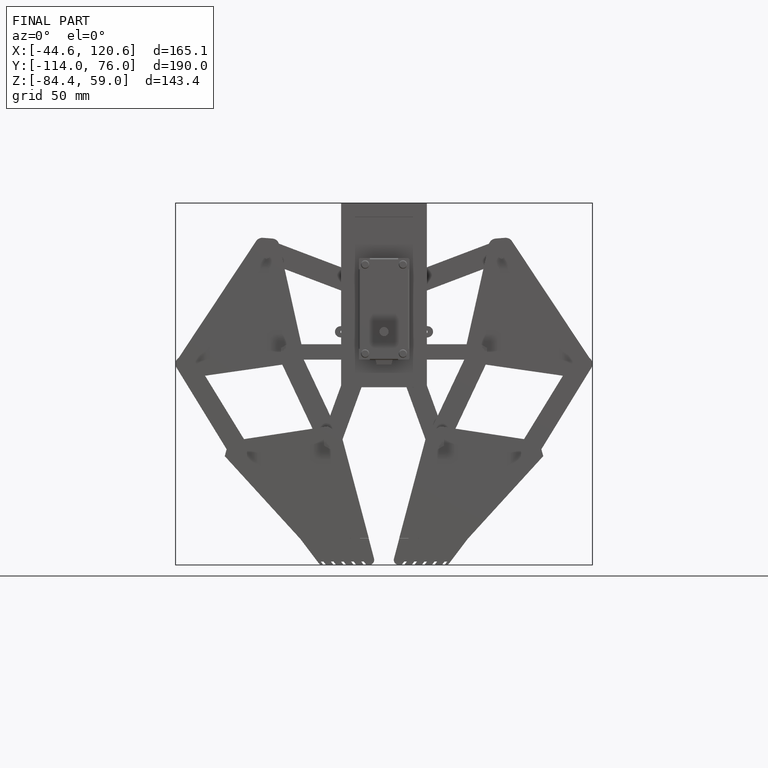
[diagram: finished part — front view with bounding-box wireframe]
